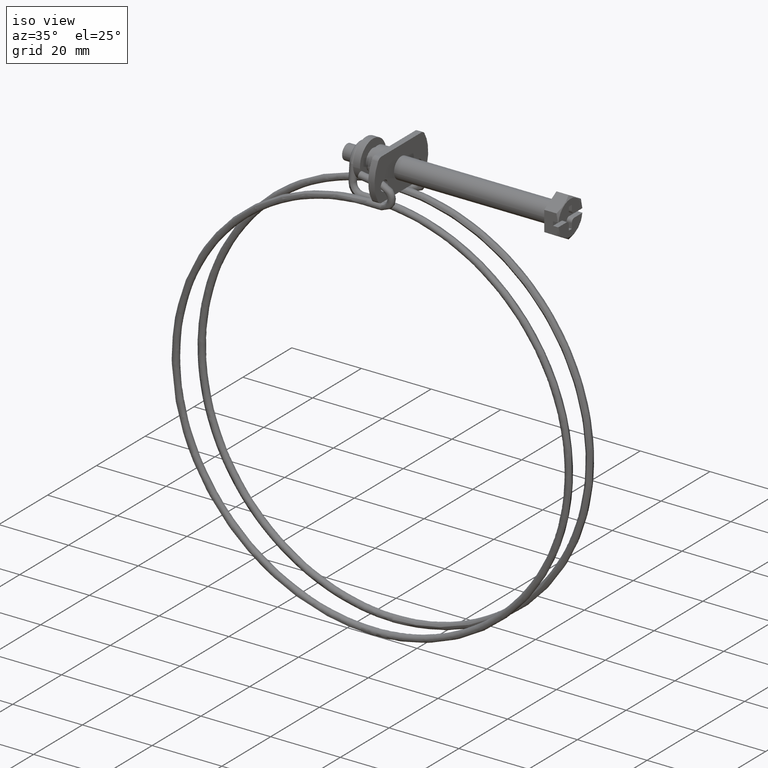
[diagram: clean part render]
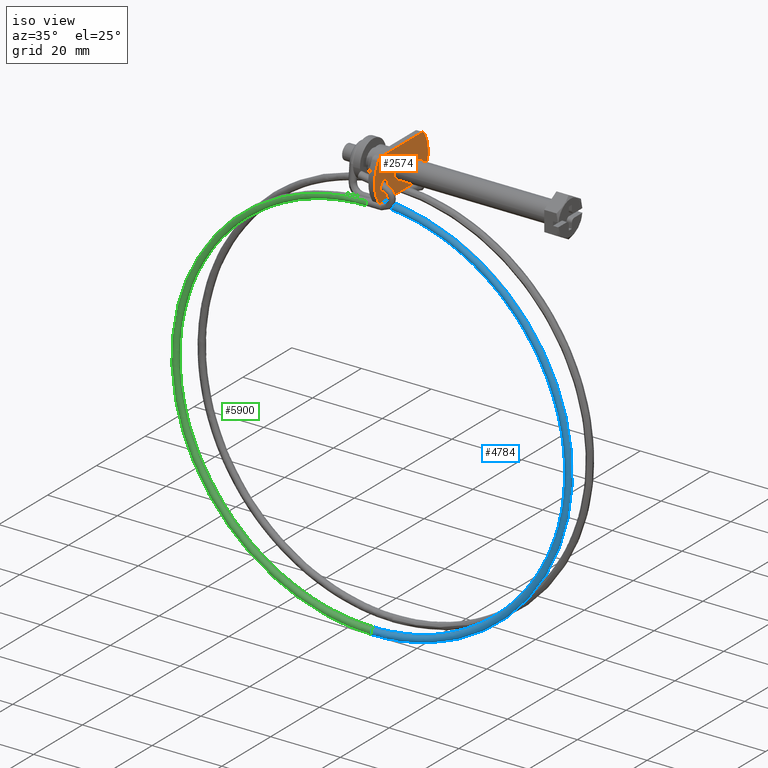
[diagram: same view with three faces highlighted in distinct colors, each labeled with its STEP entity id]
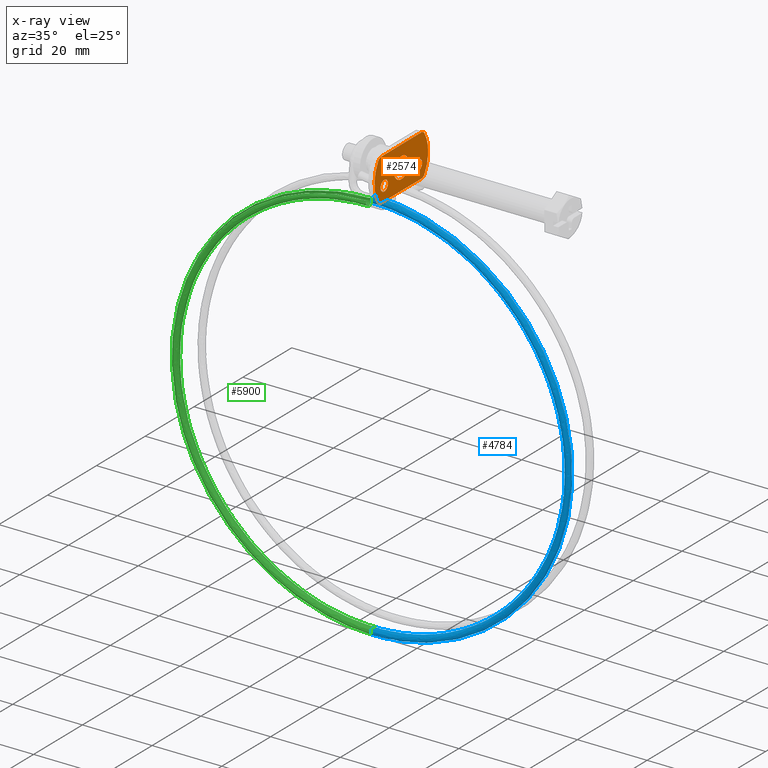
[diagram: x-ray of the same camera — body ghosted, the three highlighted faces saturated]
A machine part, iso view with three faces highlighted in distinct colors.
The next image is the same camera in x-ray (body ghosted, the three faces saturated) — at least one of them is partly hidden behind the body in this view.
Their STEP definitions:

[orange] entity #2574 — the highlighted face is a freeform B-spline surface patch.
#1904=CARTESIAN_POINT('',(-44.500000000000000,-2.976798641472038,-0.372384006275397));
#1905=VERTEX_POINT('',#1904);
#1911=CARTESIAN_POINT('',(-44.500000000000000,0.0,-2.999999999999915));
#1912=VERTEX_POINT('',#1911);
#1913=CARTESIAN_POINT('',(-44.500000000000007,-2.976798641472039,-0.372384006275397));
#1914=CARTESIAN_POINT('',(-44.500000000000000,-2.648095800386207,-2.999999999999915));
#1915=CARTESIAN_POINT('',(-44.500000000000000,0.0,-2.999999999999915));
#1923=(BOUNDED_CURVE()B_SPLINE_CURVE(2,(#1913,#1914,#1915),.UNSPECIFIED.,.F.,.U.)B_SPLINE_CURVE_WITH_KNOTS((3,3),(0.271473928974771,0.500000000000000),.UNSPECIFIED.)CURVE()GEOMETRIC_REPRESENTATION_ITEM()RATIONAL_B_SPLINE_CURVE((0.954005430266821,0.732265053898516,1.0))REPRESENTATION_ITEM(''));
#1924=EDGE_CURVE('',#1905,#1912,#1923,.T.);
#1926=CARTESIAN_POINT('',(-44.500000000000000,2.999885769186404,0.026179607185463));
#1927=VERTEX_POINT('',#1926);
#1928=CARTESIAN_POINT('',(-44.500000000000000,0.0,-2.999999999999915));
#1929=CARTESIAN_POINT('',(-44.500000000000000,2.999999999999915,-2.999999999999915));
#1930=CARTESIAN_POINT('',(-44.500000000000000,2.999999999999915,0.0));
#1931=CARTESIAN_POINT('',(-44.500000000000007,2.999999999999915,0.013090053152478));
#1932=CARTESIAN_POINT('',(-44.500000000000000,2.999885769186404,0.026179607185463));
#1940=(BOUNDED_CURVE()B_SPLINE_CURVE(2,(#1928,#1929,#1930,#1931,#1932),.UNSPECIFIED.,.F.,.U.)B_SPLINE_CURVE_WITH_KNOTS((3,2,3),(0.500000000000000,0.750000000000000,0.751539894416055),.UNSPECIFIED.)CURVE()GEOMETRIC_REPRESENTATION_ITEM()RATIONAL_B_SPLINE_CURVE((1.0,0.707106781186547,1.0,0.998195901471395,0.996414027912792))REPRESENTATION_ITEM(''));
#1941=EDGE_CURVE('',#1912,#1927,#1940,.T.);
#2021=CARTESIAN_POINT('',(-44.500000000000000,0.0,2.999999999999915));
#2022=VERTEX_POINT('',#2021);
#2023=CARTESIAN_POINT('',(-44.499999999999993,2.999885769186403,0.026179607185463));
#2024=CARTESIAN_POINT('',(-44.499999999999993,2.973933630416058,2.999999999999914));
#2025=CARTESIAN_POINT('',(-44.500000000000000,0.0,2.999999999999915));
#2033=(BOUNDED_CURVE()B_SPLINE_CURVE(2,(#2023,#2024,#2025),.UNSPECIFIED.,.F.,.U.)B_SPLINE_CURVE_WITH_KNOTS((3,3),(0.751539894416056,1.0),.UNSPECIFIED.)CURVE()GEOMETRIC_REPRESENTATION_ITEM()RATIONAL_B_SPLINE_CURVE((0.996414027912790,0.708910879715154,1.0))REPRESENTATION_ITEM(''));
#2034=EDGE_CURVE('',#1927,#2022,#2033,.T.);
#2036=CARTESIAN_POINT('',(-44.500000000000000,0.0,2.999999999999915));
#2037=CARTESIAN_POINT('',(-44.500000000000000,-2.999999999999915,2.999999999999915));
#2038=CARTESIAN_POINT('',(-44.500000000000000,-2.999999999999915,0.0));
#2039=CARTESIAN_POINT('',(-44.500000000000000,-2.999999999999915,-0.186914782636819));
#2040=CARTESIAN_POINT('',(-44.500000000000000,-2.976798641472039,-0.372384006275397));
#2048=(BOUNDED_CURVE()B_SPLINE_CURVE(2,(#2036,#2037,#2038,#2039,#2040),.UNSPECIFIED.,.F.,.U.)B_SPLINE_CURVE_WITH_KNOTS((3,2,3),(0.0,0.250000000000000,0.271473928974771),.UNSPECIFIED.)CURVE()GEOMETRIC_REPRESENTATION_ITEM()RATIONAL_B_SPLINE_CURVE((1.0,0.707106781186547,1.0,0.974841727288031,0.954005430266820))REPRESENTATION_ITEM(''));
#2049=EDGE_CURVE('',#2022,#1905,#2048,.T.);
#2077=CARTESIAN_POINT('',(-44.500000000000000,-8.489514289422328,-1.822948646977202));
#2078=VERTEX_POINT('',#2077);
#2079=CARTESIAN_POINT('',(-44.500000000000000,-7.000000000000171,-3.500000000000000));
#2080=VERTEX_POINT('',#2079);
#2081=CARTESIAN_POINT('',(-44.500000000000000,-8.489514289422328,-1.822948646977202));
#2082=CARTESIAN_POINT('',(-44.500000000000000,-8.500000000000171,-1.911163819473505));
#2083=CARTESIAN_POINT('',(-44.500000000000000,-8.500000000000171,-2.0));
#2084=CARTESIAN_POINT('',(-44.500000000000007,-8.500000000000171,-3.499999999999999));
#2085=CARTESIAN_POINT('',(-44.500000000000000,-7.000000000000171,-3.500000000000000));
#2093=(BOUNDED_CURVE()B_SPLINE_CURVE(2,(#2081,#2082,#2083,#2084,#2085),.UNSPECIFIED.,.F.,.U.)B_SPLINE_CURVE_WITH_KNOTS((3,2,3),(0.229562473280174,0.250000000000000,0.500000000000000),.UNSPECIFIED.)CURVE()GEOMETRIC_REPRESENTATION_ITEM()RATIONAL_B_SPLINE_CURVE((0.956026753726355,0.976055948057777,1.0,0.707106781186548,1.0))REPRESENTATION_ITEM(''));
#2094=EDGE_CURVE('',#2078,#2080,#2093,.T.);
#2096=CARTESIAN_POINT('',(-44.500000000000000,-5.502797802392843,-2.091572809718776));
#2097=VERTEX_POINT('',#2096);
#2098=CARTESIAN_POINT('',(-44.500000000000000,-7.000000000000171,-3.500000000000000));
#2099=CARTESIAN_POINT('',(-44.500000000000007,-5.588940900428148,-3.500000000000000));
#2100=CARTESIAN_POINT('',(-44.500000000000000,-5.502797802392843,-2.091572809718776));
#2108=(BOUNDED_CURVE()B_SPLINE_CURVE(2,(#2098,#2099,#2100),.UNSPECIFIED.,.F.,.U.)B_SPLINE_CURVE_WITH_KNOTS((3,3),(0.500000000000000,0.739332962145971),.UNSPECIFIED.)CURVE()GEOMETRIC_REPRESENTATION_ITEM()RATIONAL_B_SPLINE_CURVE((1.0,0.719603993395634,0.976072041467460))REPRESENTATION_ITEM(''));
#2109=EDGE_CURVE('',#2080,#2097,#2108,.T.);
#2176=CARTESIAN_POINT('',(-44.500000000000000,-7.000000000000171,-0.500000000000000));
#2177=VERTEX_POINT('',#2176);
#2178=CARTESIAN_POINT('',(-44.500000000000000,-7.000000000000171,-0.500000000000000));
#2179=CARTESIAN_POINT('',(-44.500000000000014,-8.332261787057933,-0.500000000000000));
#2180=CARTESIAN_POINT('',(-44.500000000000000,-8.489514289422328,-1.822948646977202));
#2188=(BOUNDED_CURVE()B_SPLINE_CURVE(2,(#2178,#2179,#2180),.UNSPECIFIED.,.F.,.U.)B_SPLINE_CURVE_WITH_KNOTS((3,3),(0.0,0.229562473280174),.UNSPECIFIED.)CURVE()GEOMETRIC_REPRESENTATION_ITEM()RATIONAL_B_SPLINE_CURVE((1.0,0.731050833128770,0.956026753726355))REPRESENTATION_ITEM(''));
#2189=EDGE_CURVE('',#2177,#2078,#2188,.T.);
#2223=CARTESIAN_POINT('',(-44.500000000000000,-5.502797802392843,-2.091572809718776));
#2224=CARTESIAN_POINT('',(-44.500000000000000,-5.500000000000170,-2.045829145365541));
#2225=CARTESIAN_POINT('',(-44.500000000000000,-5.500000000000170,-2.0));
#2226=CARTESIAN_POINT('',(-44.500000000000007,-5.500000000000171,-0.500000000000000));
#2227=CARTESIAN_POINT('',(-44.500000000000000,-7.000000000000171,-0.500000000000000));
#2235=(BOUNDED_CURVE()B_SPLINE_CURVE(2,(#2223,#2224,#2225,#2226,#2227),.UNSPECIFIED.,.F.,.U.)B_SPLINE_CURVE_WITH_KNOTS((3,2,3),(0.739332962145970,0.750000000000000,1.0),.UNSPECIFIED.)CURVE()GEOMETRIC_REPRESENTATION_ITEM()RATIONAL_B_SPLINE_CURVE((0.976072041467460,0.987502787790913,1.0,0.707106781186548,1.0))REPRESENTATION_ITEM(''));
#2236=EDGE_CURVE('',#2097,#2177,#2235,.T.);
#2263=CARTESIAN_POINT('',(-44.500000000000000,5.510485710577843,-1.822948646977202));
#2264=VERTEX_POINT('',#2263);
#2265=CARTESIAN_POINT('',(-44.500000000000000,7.0,-3.500000000000000));
#2266=VERTEX_POINT('',#2265);
#2267=CARTESIAN_POINT('',(-44.500000000000000,5.510485710577844,-1.822948646977203));
#2268=CARTESIAN_POINT('',(-44.499999999999993,5.500000000000000,-1.911163819473505));
#2269=CARTESIAN_POINT('',(-44.500000000000000,5.500000000000000,-2.0));
#2270=CARTESIAN_POINT('',(-44.500000000000007,5.500000000000001,-3.499999999999999));
#2271=CARTESIAN_POINT('',(-44.500000000000000,7.0,-3.500000000000000));
#2279=(BOUNDED_CURVE()B_SPLINE_CURVE(2,(#2267,#2268,#2269,#2270,#2271),.UNSPECIFIED.,.F.,.U.)B_SPLINE_CURVE_WITH_KNOTS((3,2,3),(0.229562473280174,0.250000000000000,0.500000000000000),.UNSPECIFIED.)CURVE()GEOMETRIC_REPRESENTATION_ITEM()RATIONAL_B_SPLINE_CURVE((0.956026753726355,0.976055948057777,1.0,0.707106781186548,1.0))REPRESENTATION_ITEM(''));
#2280=EDGE_CURVE('',#2264,#2266,#2279,.T.);
#2282=CARTESIAN_POINT('',(-44.500000000000000,8.497202197607326,-2.091572809718776));
#2283=VERTEX_POINT('',#2282);
#2284=CARTESIAN_POINT('',(-44.500000000000000,7.0,-3.500000000000000));
#2285=CARTESIAN_POINT('',(-44.500000000000007,8.411059099572025,-3.500000000000000));
#2286=CARTESIAN_POINT('',(-44.500000000000000,8.497202197607326,-2.091572809718776));
#2294=(BOUNDED_CURVE()B_SPLINE_CURVE(2,(#2284,#2285,#2286),.UNSPECIFIED.,.F.,.U.)B_SPLINE_CURVE_WITH_KNOTS((3,3),(0.500000000000000,0.739332962145971),.UNSPECIFIED.)CURVE()GEOMETRIC_REPRESENTATION_ITEM()RATIONAL_B_SPLINE_CURVE((1.0,0.719603993395634,0.976072041467460))REPRESENTATION_ITEM(''));
#2295=EDGE_CURVE('',#2266,#2283,#2294,.T.);
#2362=CARTESIAN_POINT('',(-44.500000000000000,7.0,-0.500000000000000));
#2363=VERTEX_POINT('',#2362);
#2364=CARTESIAN_POINT('',(-44.500000000000000,7.0,-0.500000000000000));
#2365=CARTESIAN_POINT('',(-44.499999999999993,5.667738212942238,-0.500000000000000));
#2366=CARTESIAN_POINT('',(-44.500000000000000,5.510485710577844,-1.822948646977202));
#2374=(BOUNDED_CURVE()B_SPLINE_CURVE(2,(#2364,#2365,#2366),.UNSPECIFIED.,.F.,.U.)B_SPLINE_CURVE_WITH_KNOTS((3,3),(0.0,0.229562473280174),.UNSPECIFIED.)CURVE()GEOMETRIC_REPRESENTATION_ITEM()RATIONAL_B_SPLINE_CURVE((1.0,0.731050833128770,0.956026753726355))REPRESENTATION_ITEM(''));
#2375=EDGE_CURVE('',#2363,#2264,#2374,.T.);
#2409=CARTESIAN_POINT('',(-44.500000000000000,8.497202197607326,-2.091572809718776));
#2410=CARTESIAN_POINT('',(-44.500000000000000,8.499999999999998,-2.045829145365541));
#2411=CARTESIAN_POINT('',(-44.500000000000000,8.500000000000000,-2.0));
#2412=CARTESIAN_POINT('',(-44.500000000000007,8.500000000000002,-0.500000000000000));
#2413=CARTESIAN_POINT('',(-44.500000000000000,7.0,-0.500000000000000));
#2421=(BOUNDED_CURVE()B_SPLINE_CURVE(2,(#2409,#2410,#2411,#2412,#2413),.UNSPECIFIED.,.F.,.U.)B_SPLINE_CURVE_WITH_KNOTS((3,2,3),(0.739332962145970,0.750000000000000,1.0),.UNSPECIFIED.)CURVE()GEOMETRIC_REPRESENTATION_ITEM()RATIONAL_B_SPLINE_CURVE((0.976072041467460,0.987502787790913,1.0,0.707106781186548,1.0))REPRESENTATION_ITEM(''));
#2422=EDGE_CURVE('',#2283,#2363,#2421,.T.);
#2445=CARTESIAN_POINT('',(-44.500000000000000,-12.098901057259649,6.599399976741672));
#2446=CARTESIAN_POINT('',(-44.500000000000000,12.098901647345629,6.599399976741672));
#2447=CARTESIAN_POINT('',(-44.500000000000000,-12.098901057259649,-6.599400298606754));
#2448=CARTESIAN_POINT('',(-44.500000000000000,12.098901647345629,-6.599400298606754));
#2449=B_SPLINE_SURFACE_WITH_KNOTS('',1,1,((#2445,#2447),(#2446,#2448)),.UNSPECIFIED.,.F.,.F.,.U.,(2,2),(2,2),(0.0,24.197802704605280),(0.0,13.198800275348431),.UNSPECIFIED.);
#2450=CARTESIAN_POINT('',(-44.500000000000000,-8.211102835975872,6.0));
#2451=VERTEX_POINT('',#2450);
#2452=CARTESIAN_POINT('',(-44.500000000000000,8.211102835975812,6.0));
#2453=VERTEX_POINT('',#2452);
#2454=CARTESIAN_POINT('',(-44.500000000000000,-8.211102835975872,6.0));
#2455=CARTESIAN_POINT('',(-44.500000000000000,8.211102835975812,6.0));
#2456=QUASI_UNIFORM_CURVE('',1,(#2454,#2455),.UNSPECIFIED.,.F.,.U.);
#2457=EDGE_CURVE('',#2451,#2453,#2456,.T.);
#2458=ORIENTED_EDGE('',*,*,#2457,.F.);
#2459=CARTESIAN_POINT('',(-44.500000000000000,-9.483650111758561,5.294118020761420));
#2460=VERTEX_POINT('',#2459);
#2461=CARTESIAN_POINT('',(-44.500000000000000,-8.211102835975872,6.0));
#2462=CARTESIAN_POINT('',(-44.500000000000014,-9.043152842296166,6.0));
#2463=CARTESIAN_POINT('',(-44.500000000000000,-9.483650111758568,5.294118020761424));
#2471=(BOUNDED_CURVE()B_SPLINE_CURVE(2,(#2461,#2462,#2463),.UNSPECIFIED.,.F.,.U.)CURVE()GEOMETRIC_REPRESENTATION_ITEM()QUASI_UNIFORM_CURVE()RATIONAL_B_SPLINE_CURVE((1.0,0.874474703419415,1.0))REPRESENTATION_ITEM(''));
#2472=EDGE_CURVE('',#2451,#2460,#2471,.T.);
#2473=ORIENTED_EDGE('',*,*,#2472,.T.);
#2474=CARTESIAN_POINT('',(-44.500000000000000,-9.483650111758561,-5.294118020761420));
#2475=VERTEX_POINT('',#2474);
#2476=CARTESIAN_POINT('',(-44.500000000000000,-9.483650111758561,5.294118020761425));
#2477=CARTESIAN_POINT('',(-44.500000000000007,-12.787381614966266,8.673617E-016));
#2478=CARTESIAN_POINT('',(-44.500000000000000,-9.483650111758561,-5.294118020761424));
#2486=(BOUNDED_CURVE()B_SPLINE_CURVE(2,(#2476,#2477,#2478),.UNSPECIFIED.,.F.,.U.)CURVE()GEOMETRIC_REPRESENTATION_ITEM()QUASI_UNIFORM_CURVE()RATIONAL_B_SPLINE_CURVE((1.0,0.848364850521798,1.0))REPRESENTATION_ITEM(''));
#2487=EDGE_CURVE('',#2460,#2475,#2486,.T.);
#2488=ORIENTED_EDGE('',*,*,#2487,.T.);
#2489=CARTESIAN_POINT('',(-44.500000000000000,-8.211102835975872,-6.0));
#2490=VERTEX_POINT('',#2489);
#2491=CARTESIAN_POINT('',(-44.500000000000000,-9.483650111758568,-5.294118020761424));
#2492=CARTESIAN_POINT('',(-44.500000000000000,-9.043152842296165,-6.000000000000001));
#2493=CARTESIAN_POINT('',(-44.500000000000000,-8.211102835975872,-6.0));
#2501=(BOUNDED_CURVE()B_SPLINE_CURVE(2,(#2491,#2492,#2493),.UNSPECIFIED.,.F.,.U.)CURVE()GEOMETRIC_REPRESENTATION_ITEM()QUASI_UNIFORM_CURVE()RATIONAL_B_SPLINE_CURVE((1.0,0.874474703419416,1.0))REPRESENTATION_ITEM(''));
#2502=EDGE_CURVE('',#2475,#2490,#2501,.T.);
#2503=ORIENTED_EDGE('',*,*,#2502,.T.);
#2504=CARTESIAN_POINT('',(-44.500000000000000,8.211102835975812,-6.0));
#2505=VERTEX_POINT('',#2504);
#2506=CARTESIAN_POINT('',(-44.500000000000000,8.211102835975812,-6.0));
#2507=CARTESIAN_POINT('',(-44.500000000000000,-8.211102835975872,-6.0));
#2508=QUASI_UNIFORM_CURVE('',1,(#2506,#2507),.UNSPECIFIED.,.F.,.U.);
#2509=EDGE_CURVE('',#2505,#2490,#2508,.T.);
#2510=ORIENTED_EDGE('',*,*,#2509,.F.);
#2511=CARTESIAN_POINT('',(-44.500000000000000,9.483650111758500,-5.294118020761420));
#2512=VERTEX_POINT('',#2511);
#2513=CARTESIAN_POINT('',(-44.500000000000000,8.211102835975812,-6.0));
#2514=CARTESIAN_POINT('',(-44.500000000000014,9.043152842296104,-6.0));
#2515=CARTESIAN_POINT('',(-44.500000000000000,9.483650111758506,-5.294118020761425));
#2523=(BOUNDED_CURVE()B_SPLINE_CURVE(2,(#2513,#2514,#2515),.UNSPECIFIED.,.F.,.U.)CURVE()GEOMETRIC_REPRESENTATION_ITEM()QUASI_UNIFORM_CURVE()RATIONAL_B_SPLINE_CURVE((1.0,0.874474703419415,1.0))REPRESENTATION_ITEM(''));
#2524=EDGE_CURVE('',#2505,#2512,#2523,.T.);
#2525=ORIENTED_EDGE('',*,*,#2524,.T.);
#2526=CARTESIAN_POINT('',(-44.500000000000000,9.483650111758500,5.294118020761420));
#2527=VERTEX_POINT('',#2526);
#2528=CARTESIAN_POINT('',(-44.500000000000000,9.483650111758506,-5.294118020761426));
#2529=CARTESIAN_POINT('',(-44.500000000000000,12.787381614966209,-3.469447E-015));
#2530=CARTESIAN_POINT('',(-44.500000000000000,9.483650111758506,5.294118020761422));
#2538=(BOUNDED_CURVE()B_SPLINE_CURVE(2,(#2528,#2529,#2530),.UNSPECIFIED.,.F.,.U.)CURVE()GEOMETRIC_REPRESENTATION_ITEM()QUASI_UNIFORM_CURVE()RATIONAL_B_SPLINE_CURVE((1.0,0.848364850521798,1.0))REPRESENTATION_ITEM(''));
#2539=EDGE_CURVE('',#2512,#2527,#2538,.T.);
#2540=ORIENTED_EDGE('',*,*,#2539,.T.);
#2541=CARTESIAN_POINT('',(-44.500000000000000,9.483650111758507,5.294118020761424));
#2542=CARTESIAN_POINT('',(-44.500000000000000,9.043152842296104,6.000000000000001));
#2543=CARTESIAN_POINT('',(-44.500000000000000,8.211102835975812,6.0));
#2551=(BOUNDED_CURVE()B_SPLINE_CURVE(2,(#2541,#2542,#2543),.UNSPECIFIED.,.F.,.U.)CURVE()GEOMETRIC_REPRESENTATION_ITEM()QUASI_UNIFORM_CURVE()RATIONAL_B_SPLINE_CURVE((1.0,0.874474703419416,1.0))REPRESENTATION_ITEM(''));
#2552=EDGE_CURVE('',#2527,#2453,#2551,.T.);
#2553=ORIENTED_EDGE('',*,*,#2552,.T.);
#2554=EDGE_LOOP('',(#2458,#2473,#2488,#2503,#2510,#2525,#2540,#2553));
#2555=FACE_OUTER_BOUND('',#2554,.T.);
#2556=ORIENTED_EDGE('',*,*,#2295,.F.);
#2557=ORIENTED_EDGE('',*,*,#2280,.F.);
#2558=ORIENTED_EDGE('',*,*,#2375,.F.);
#2559=ORIENTED_EDGE('',*,*,#2422,.F.);
#2560=EDGE_LOOP('',(#2556,#2557,#2558,#2559));
#2561=FACE_BOUND('',#2560,.T.);
#2562=ORIENTED_EDGE('',*,*,#2109,.F.);
#2563=ORIENTED_EDGE('',*,*,#2094,.F.);
#2564=ORIENTED_EDGE('',*,*,#2189,.F.);
#2565=ORIENTED_EDGE('',*,*,#2236,.F.);
#2566=EDGE_LOOP('',(#2562,#2563,#2564,#2565));
#2567=FACE_BOUND('',#2566,.T.);
#2568=ORIENTED_EDGE('',*,*,#1941,.F.);
#2569=ORIENTED_EDGE('',*,*,#1924,.F.);
#2570=ORIENTED_EDGE('',*,*,#2049,.F.);
#2571=ORIENTED_EDGE('',*,*,#2034,.F.);
#2572=EDGE_LOOP('',(#2568,#2569,#2570,#2571));
#2573=FACE_BOUND('',#2572,.T.);
#2574=ADVANCED_FACE('',(#2555,#2561,#2567,#2573),#2449,.F.);

[blue] entity #4784 — the highlighted face is a freeform B-spline surface patch.
#4046=CARTESIAN_POINT('',(-49.255038650200348,-5.060398715509752,-8.499779983532186));
#4047=VERTEX_POINT('',#4046);
#4053=CARTESIAN_POINT('',(-49.254950395027471,-4.300001982146626,-6.850340497804752));
#4054=VERTEX_POINT('',#4053);
#4055=CARTESIAN_POINT('',(-49.254950395027471,-4.300001982146626,-6.850340497804752));
#4056=CARTESIAN_POINT('',(-49.254950395040659,-4.430901965094715,-6.850340742096166));
#4057=CARTESIAN_POINT('',(-49.254951787681648,-4.561750569623735,-6.876368415959608));
#4058=CARTESIAN_POINT('',(-49.254957148311433,-4.803622681404398,-6.976555564983467));
#4059=CARTESIAN_POINT('',(-49.254961114191040,-4.914551022308484,-7.050675620778942));
#4060=CARTESIAN_POINT('',(-49.254971019316962,-5.099672443531182,-7.235796845003726));
#4061=CARTESIAN_POINT('',(-49.254976954666013,-5.173792686475602,-7.346725176136355));
#4062=CARTESIAN_POINT('',(-49.254989896322442,-5.273980358889042,-7.588597447301913));
#4063=CARTESIAN_POINT('',(-49.254996897537808,-5.300008368787180,-7.719446220924572));
#4064=CARTESIAN_POINT('',(-49.255010905474833,-5.300009627469922,-7.981246678323548));
#4065=CARTESIAN_POINT('',(-49.255017906684969,-5.273982875759288,-8.112095354799282));
#4066=CARTESIAN_POINT('',(-49.255029554110457,-5.183816428355129,-8.329779182064886));
#4067=CARTESIAN_POINT('',(-49.255034388014323,-5.128365972188192,-8.420122125025397));
#4068=CARTESIAN_POINT('',(-49.255038650200348,-5.060398715509752,-8.499779983532186));
#4069=B_SPLINE_CURVE_WITH_KNOTS('',3,(#4055,#4056,#4057,#4058,#4059,#4060,#4061,#4062,#4063,#4064,#4065,#4066,#4067,#4068),.UNSPECIFIED.,.F.,.U.,(4,2,2,2,2,2,4),(0.0,0.062500000000000,0.125000000000000,0.187500000000000,0.250000000000000,0.312500000000001,0.362499545093492),.UNSPECIFIED.);
#4070=EDGE_CURVE('',#4054,#4047,#4069,.T.);
#4072=CARTESIAN_POINT('',(-49.254950396213523,-4.274872013483973,-6.850655176147978));
#4073=VERTEX_POINT('',#4072);
#4074=CARTESIAN_POINT('',(-49.254950396213523,-4.274872013483973,-6.850655176147978));
#4075=CARTESIAN_POINT('',(-49.254950390131818,-4.283246735310286,-6.850444015374301));
#4076=CARTESIAN_POINT('',(-49.254950389727838,-4.291624253248391,-6.850338951347286));
#4077=CARTESIAN_POINT('',(-49.254950395027471,-4.300001982146626,-6.850340497804752));
#4078=B_SPLINE_CURVE_WITH_KNOTS('',3,(#4074,#4075,#4076,#4077),.UNSPECIFIED.,.F.,.U.,(4,4),(0.995999947857684,1.0),.UNSPECIFIED.);
#4079=EDGE_CURVE('',#4073,#4054,#4078,.T.);
#4196=CARTESIAN_POINT('',(-49.255005245896342,-3.300319568369443,-7.875470703817528));
#4197=VERTEX_POINT('',#4196);
#4209=CARTESIAN_POINT('',(-49.255057407346328,-4.300002017860920,-8.850340494941847));
#4210=VERTEX_POINT('',#4209);
#4211=CARTESIAN_POINT('',(-49.255057407346328,-4.300002017860920,-8.850340494941847));
#4212=CARTESIAN_POINT('',(-49.255057407352488,-4.169102206010277,-8.850340500275193));
#4213=CARTESIAN_POINT('',(-49.255056014737747,-4.038253874310510,-8.824313182892917));
#4214=CARTESIAN_POINT('',(-49.255050654170219,-3.796382470529389,-8.724126906813041));
#4215=CARTESIAN_POINT('',(-49.255046688326630,-3.685454564517028,-8.650007367136926));
#4216=CARTESIAN_POINT('',(-49.255036783277077,-3.500334109312011,-8.464887256652775));
#4217=CARTESIAN_POINT('',(-49.255030847968342,-3.426214397113463,-8.353959522703219));
#4218=CARTESIAN_POINT('',(-49.255018320531477,-3.329233852053024,-8.119828502795818));
#4219=CARTESIAN_POINT('',(-49.255011799214103,-3.303430513943580,-7.997948628311911));
#4220=CARTESIAN_POINT('',(-49.255005245896342,-3.300319568369443,-7.875470703817528));
#4221=B_SPLINE_CURVE_WITH_KNOTS('',3,(#4211,#4212,#4213,#4214,#4215,#4216,#4217,#4218,#4219,#4220),.UNSPECIFIED.,.F.,.U.,(4,2,2,2,4),(0.500000000000001,0.562500000000001,0.625000000000001,0.687500000000001,0.745999901021726),.UNSPECIFIED.);
#4222=EDGE_CURVE('',#4210,#4197,#4221,.T.);
#4224=CARTESIAN_POINT('',(-49.255038650200348,-5.060398715509752,-8.499779983532186));
#4225=CARTESIAN_POINT('',(-49.255039715780271,-5.043405798540080,-8.519695072668446));
#4226=CARTESIAN_POINT('',(-49.255040745624576,-5.025630510358625,-8.538942283263031));
#4227=CARTESIAN_POINT('',(-49.255046688623743,-4.914556079073689,-8.650013593572201));
#4228=CARTESIAN_POINT('',(-49.255050654407157,-4.803626833198496,-8.724131855056879));
#4229=CARTESIAN_POINT('',(-49.255056014854041,-4.561752746006958,-8.824315593813875));
#4230=CARTESIAN_POINT('',(-49.255057407408408,-4.430903071815419,-8.850341653063046));
#4231=CARTESIAN_POINT('',(-49.255057407346328,-4.300002017860920,-8.850340494941847));
#4232=B_SPLINE_CURVE_WITH_KNOTS('',3,(#4224,#4225,#4226,#4227,#4228,#4229,#4230,#4231),.UNSPECIFIED.,.F.,.U.,(4,2,2,4),(0.362499545093492,0.375000000000001,0.437500000000001,0.500000000000001),.UNSPECIFIED.);
#4233=EDGE_CURVE('',#4047,#4210,#4232,.T.);
#4631=CARTESIAN_POINT('',(-49.449999999752777,-3.300326002993875,-119.824871102866790));
#4632=VERTEX_POINT('',#4631);
#4633=CARTESIAN_POINT('',(-49.449999999955843,-4.274873102286453,-120.849677996990910));
#4634=VERTEX_POINT('',#4633);
#4646=CARTESIAN_POINT('',(-49.449999999752784,-3.300326002993875,-119.824871102866810));
#4647=CARTESIAN_POINT('',(6.174269713956732,-3.300325998290083,-119.824871102418500));
#4648=CARTESIAN_POINT('',(6.523765008624322,-3.300322801161642,-64.201699247883738));
#4649=CARTESIAN_POINT('',(6.876449157732067,-3.300319574862058,-8.071012124186694));
#4650=CARTESIAN_POINT('',(-49.255005245896342,-3.300319568369443,-7.875470703817528));
#4658=(BOUNDED_CURVE()B_SPLINE_CURVE(2,(#4646,#4647,#4648,#4649,#4650),.UNSPECIFIED.,.F.,.U.)B_SPLINE_CURVE_WITH_KNOTS((3,2,3),(-3.792515020809203,-2.0,-0.196300389414221),.UNSPECIFIED.)CURVE()GEOMETRIC_REPRESENTATION_ITEM()RATIONAL_B_SPLINE_CURVE((0.934811369269982,0.685815180528936,1.0,0.683854790641534,0.937940572291493))REPRESENTATION_ITEM(''));
#4659=EDGE_CURVE('',#4632,#4197,#4658,.T.);
#4663=CARTESIAN_POINT('',(-49.449999999955843,-4.274873102286453,-120.849677996990890));
#4664=CARTESIAN_POINT('',(7.192665045231515,-4.274873102226135,-120.849678007006150));
#4665=CARTESIAN_POINT('',(7.548559056414305,-4.274872561243584,-64.208136918656493));
#4666=CARTESIAN_POINT('',(7.907722454280248,-4.274872015291350,-7.046263668684757));
#4667=CARTESIAN_POINT('',(-49.254950396213523,-4.274872013483973,-6.850655176147978));
#4675=(BOUNDED_CURVE()B_SPLINE_CURVE(2,(#4663,#4664,#4665,#4666,#4667),.UNSPECIFIED.,.F.,.U.)B_SPLINE_CURVE_WITH_KNOTS((3,2,3),(-3.792515020813680,-2.0,-0.196224319360392),.UNSPECIFIED.)CURVE()GEOMETRIC_REPRESENTATION_ITEM()RATIONAL_B_SPLINE_CURVE((0.934811369271226,0.685815180528151,1.0,0.683841457388617,0.937962005166108))REPRESENTATION_ITEM(''));
#4676=EDGE_CURVE('',#4634,#4073,#4675,.T.);
#4681=CARTESIAN_POINT('',(-57.521347176716482,-4.253708619558948,-120.274789008766730));
#4682=CARTESIAN_POINT('',(7.137629930023767,-4.253708702141235,-129.524005013665200));
#4683=CARTESIAN_POINT('',(7.548027046201080,-4.253708118963803,-64.208134879353580));
#4684=CARTESIAN_POINT('',(7.962016232611971,-4.253707530682014,1.679423465329880));
#4685=CARTESIAN_POINT('',(-57.299128752666050,-4.253707611693580,-7.393871794995923));
#4686=CARTESIAN_POINT('',(-57.521384679697476,-4.264244160591654,-120.275051182719450));
#4687=CARTESIAN_POINT('',(7.137892860704764,-4.264244243174326,-129.524310163488540));
#4688=CARTESIAN_POINT('',(7.548291883765143,-4.264243659994183,-64.208136543304903));
#4689=CARTESIAN_POINT('',(7.962282993749416,-4.264243071709661,1.679727943562037));
#4690=CARTESIAN_POINT('',(-57.299165223123850,-4.264243152721606,-7.393609475230284));
#4691=CARTESIAN_POINT('',(-57.524981053796004,-5.274557097859563,-120.300192533829290));
#4692=CARTESIAN_POINT('',(7.163106778793152,-5.274557180479030,-129.553572715203810));
#4693=CARTESIAN_POINT('',(7.573688663713695,-5.274556597039041,-64.208296109058807));
#4694=CARTESIAN_POINT('',(7.987864236087510,-5.274556008492395,1.708926092580805));
#4695=CARTESIAN_POINT('',(-57.302662582700144,-5.274556089540437,-7.368454141289098));
#4696=CARTESIAN_POINT('',(-57.383421085745312,-5.299687184467090,-119.310581875947790));
#4697=CARTESIAN_POINT('',(6.170640105067831,-5.299687265638181,-128.401743942615950));
#4698=CARTESIAN_POINT('',(6.574024207340422,-5.299686692426296,-64.202014949153067));
#4699=CARTESIAN_POINT('',(6.980938997255189,-5.299686114197277,0.559633040400024));
#4700=CARTESIAN_POINT('',(-57.165000010253934,-5.299686193824489,-8.358614478813356));
#4701=CARTESIAN_POINT('',(-57.241861117694633,-5.324817271074619,-118.320971218066350));
#4702=CARTESIAN_POINT('',(5.178173431342507,-5.324817350797332,-127.249915170028130));
#4703=CARTESIAN_POINT('',(5.574359750967155,-5.324816787813553,-64.195733789247328));
#4704=CARTESIAN_POINT('',(5.974013758422858,-5.324816219902161,-0.589660011780771));
#4705=CARTESIAN_POINT('',(-57.027337437807759,-5.324816298108546,-9.348774816337627));
#4706=CARTESIAN_POINT('',(-57.238302578361690,-4.325133081569202,-118.296094360332330));
#4707=CARTESIAN_POINT('',(5.153224770052861,-4.325133161255509,-127.220960467761930));
#4708=CARTESIAN_POINT('',(5.549230151570384,-4.325132598528843,-64.195575902165544));
#4709=CARTESIAN_POINT('',(5.948701637227558,-4.325132030876816,-0.618550988883189));
#4710=CARTESIAN_POINT('',(-57.023876871339226,-4.325132109047484,-9.373665509800137));
#4711=CARTESIAN_POINT('',(-57.234744039028790,-3.325448892063789,-118.271217502598350));
#4712=CARTESIAN_POINT('',(5.128276108763202,-3.325448971713687,-127.192005765495710));
#4713=CARTESIAN_POINT('',(5.524100552173615,-3.325448409244135,-64.195418015083774));
#4714=CARTESIAN_POINT('',(5.923389516032263,-3.325447841851472,-0.647441965985622));
#4715=CARTESIAN_POINT('',(-57.020416304870714,-3.325447919986422,-9.398556203262640));
#4716=CARTESIAN_POINT('',(-57.377798960787722,-3.300053417460770,-119.271279011402560));
#4717=CARTESIAN_POINT('',(6.131223794561638,-3.300053498574338,-128.355998504482870));
#4718=CARTESIAN_POINT('',(6.534322033295116,-3.300052925768668,-64.201765507607590));
#4719=CARTESIAN_POINT('',(6.940948457601734,-3.300052347949418,0.513988273946005));
#4720=CARTESIAN_POINT('',(-57.159532672312764,-3.300052427520202,-8.397939209886186));
#4721=CARTESIAN_POINT('',(-57.379280892614460,-3.299790341142899,-119.281638829578510));
#4722=CARTESIAN_POINT('',(6.141613511167480,-3.299790422271630,-128.368056515943070));
#4723=CARTESIAN_POINT('',(6.544787100463230,-3.299789849358886,-64.201831262431497));
#4724=CARTESIAN_POINT('',(6.951489534850674,-3.299789271431627,0.526019740014686));
#4725=CARTESIAN_POINT('',(-57.160973803942504,-3.299789351017285,-8.387573637344991));
#4733=(BOUNDED_SURFACE()B_SPLINE_SURFACE(2,2,((#4681,#4686,#4691,#4696,#4701,#4706,#4711,#4716,#4721),(#4682,#4687,#4692,#4697,#4702,#4707,#4712,#4717,#4722),(#4683,#4688,#4693,#4698,#4703,#4708,#4713,#4718,#4723),(#4684,#4689,#4694,#4699,#4704,#4709,#4714,#4719,#4724),(#4685,#4690,#4695,#4700,#4705,#4710,#4715,#4720,#4725)),.UNSPECIFIED.,.F.,.F.,.U.)B_SPLINE_SURFACE_WITH_KNOTS((3,2,3),(3,1,2,2,1,3),(0.0,103.643202683104310,207.878192978932190),(0.0,0.025022772149826,1.681877021642220,3.338731271134614,4.995585520627008,5.020439189478687),.UNSPECIFIED.)GEOMETRIC_REPRESENTATION_ITEM()RATIONAL_B_SPLINE_SURFACE(((0.999134712384502,0.994753853922229,0.700299460993768,0.990372995459956,0.700299460993768,0.990372995459956,0.700299460993768,0.994724248185092,0.999075500910229),(0.660118304429724,0.657223915090412,0.462680844789180,0.654329525751100,0.462680844789180,0.654329525751100,0.462680844789180,0.657204354876201,0.660079184001302),(1.008846885935614,1.004423442967807,0.707106781186548,1.0,0.707106781186548,1.0,0.707106781186548,1.004393549445596,1.008787098891193),(0.658127114950865,0.655241456285375,0.461285208243380,0.652355797619885,0.461285208243380,0.652355797619885,0.461285208243380,0.655221955072850,0.658088112525814),(1.003028603309558,0.998630671488909,0.703028712297106,0.994232739668260,0.703028712297106,0.994232739668260,0.703028712297106,0.998600950370423,1.002969161072586)))REPRESENTATION_ITEM('')SURFACE());
#4734=CARTESIAN_POINT('',(-49.450000000000003,-4.300003000000027,-118.850001000000010));
#4735=VERTEX_POINT('',#4734);
#4736=CARTESIAN_POINT('',(-49.450000000000003,-4.300003000000027,-118.850001000000010));
#4737=CARTESIAN_POINT('',(-49.449999999966820,-4.038202646737807,-118.850000974656790));
#4738=CARTESIAN_POINT('',(-49.449999999920507,-3.778014028670147,-118.957774035685800));
#4739=CARTESIAN_POINT('',(-49.449999999829302,-3.413695994489541,-119.322089346494000));
#4740=CARTESIAN_POINT('',(-49.449999999784922,-3.306974639752352,-119.571623489326700));
#4741=CARTESIAN_POINT('',(-49.449999999752777,-3.300326002993875,-119.824871102866790));
#4742=B_SPLINE_CURVE_WITH_KNOTS('',3,(#4736,#4737,#4738,#4739,#4740,#4741),.UNSPECIFIED.,.F.,.U.,(4,2,4),(0.500000000000000,0.625000000000000,0.745999310946577),.UNSPECIFIED.);
#4743=EDGE_CURVE('',#4735,#4632,#4742,.T.);
#4744=ORIENTED_EDGE('',*,*,#4743,.F.);
#4745=CARTESIAN_POINT('',(-49.450000000000003,-5.028951952933920,-120.534536709504100));
#4746=VERTEX_POINT('',#4745);
#4747=CARTESIAN_POINT('',(-49.450000000000003,-5.028951952933920,-120.534536709504100));
#4748=CARTESIAN_POINT('',(-49.450000000000003,-5.200679688403360,-120.351169156835890));
#4749=CARTESIAN_POINT('',(-49.450000000000003,-5.300003000000000,-120.101327939058090));
#4750=CARTESIAN_POINT('',(-49.450000000000003,-5.300003000000000,-119.588201612201000));
#4751=CARTESIAN_POINT('',(-49.450000000000003,-5.192229903609841,-119.328014341236600));
#4752=CARTESIAN_POINT('',(-49.450000000000003,-4.821989658763310,-118.957774096390200));
#4753=CARTESIAN_POINT('',(-49.450000000000003,-4.561802387799180,-118.850001000000010));
#4754=CARTESIAN_POINT('',(-49.450000000000003,-4.300003000000027,-118.850001000000010));
#4755=B_SPLINE_CURVE_WITH_KNOTS('',3,(#4747,#4748,#4749,#4750,#4751,#4752,#4753,#4754),.UNSPECIFIED.,.F.,.U.,(4,2,2,4),(0.130000225950265,0.250000000000000,0.375000000000000,0.500000000000000),.UNSPECIFIED.);
#4756=EDGE_CURVE('',#4746,#4735,#4755,.T.);
#4757=ORIENTED_EDGE('',*,*,#4756,.F.);
#4758=CARTESIAN_POINT('',(-49.450000000000003,-4.300003000000027,-120.850001000000010));
#4759=VERTEX_POINT('',#4758);
#4760=CARTESIAN_POINT('',(-49.450000000000003,-4.300003000000027,-120.850001000000010));
#4761=CARTESIAN_POINT('',(-49.450000000000003,-4.561802387799180,-120.850001000000010));
#4762=CARTESIAN_POINT('',(-49.450000000000003,-4.821989658763310,-120.742227903609800));
#4763=CARTESIAN_POINT('',(-49.450000000000003,-5.014514920707031,-120.549702641666000));
#4764=CARTESIAN_POINT('',(-49.450000000000003,-5.021796293800569,-120.542177383852400));
#4765=CARTESIAN_POINT('',(-49.450000000000003,-5.028951952933920,-120.534536709504100));
#4766=B_SPLINE_CURVE_WITH_KNOTS('',3,(#4760,#4761,#4762,#4763,#4764,#4765),.UNSPECIFIED.,.F.,.U.,(4,2,4),(0.0,0.125000000000000,0.130000225950264),.UNSPECIFIED.);
#4767=EDGE_CURVE('',#4759,#4746,#4766,.T.);
#4768=ORIENTED_EDGE('',*,*,#4767,.F.);
#4769=CARTESIAN_POINT('',(-49.449999999955843,-4.274873102286453,-120.849677996990910));
#4770=CARTESIAN_POINT('',(-49.449999999970558,-4.283246477988325,-120.849895397849710));
#4771=CARTESIAN_POINT('',(-49.449999999985280,-4.291623913305166,-120.850003397794000));
#4772=CARTESIAN_POINT('',(-49.450000000000003,-4.300003000000027,-120.850001000000010));
#4773=B_SPLINE_CURVE_WITH_KNOTS('',3,(#4769,#4770,#4771,#4772),.UNSPECIFIED.,.F.,.U.,(4,4),(0.995999310854167,1.0),.UNSPECIFIED.);
#4774=EDGE_CURVE('',#4634,#4759,#4773,.T.);
#4775=ORIENTED_EDGE('',*,*,#4774,.F.);
#4776=ORIENTED_EDGE('',*,*,#4676,.T.);
#4777=ORIENTED_EDGE('',*,*,#4079,.T.);
#4778=ORIENTED_EDGE('',*,*,#4070,.T.);
#4779=ORIENTED_EDGE('',*,*,#4233,.T.);
#4780=ORIENTED_EDGE('',*,*,#4222,.T.);
#4781=ORIENTED_EDGE('',*,*,#4659,.F.);
#4782=EDGE_LOOP('',(#4744,#4757,#4768,#4775,#4776,#4777,#4778,#4779,#4780,#4781));
#4783=FACE_OUTER_BOUND('',#4782,.T.);
#4784=ADVANCED_FACE('',(#4783),#4733,.T.);

[green] entity #5900 — the highlighted face is a freeform B-spline surface patch.
#2961=CARTESIAN_POINT('',(-49.450000000003463,-5.310972934075143,-7.892637589749072));
#2962=VERTEX_POINT('',#2961);
#2968=CARTESIAN_POINT('',(-49.449999999936729,-5.975864826772260,-6.907995083442195));
#2969=VERTEX_POINT('',#2968);
#2970=CARTESIAN_POINT('',(-49.450000000003463,-5.310972934075143,-7.892637589749072));
#2971=CARTESIAN_POINT('',(-49.450000000002277,-5.309781668940605,-7.866484857020035));
#2972=CARTESIAN_POINT('',(-49.450000000001062,-5.309641057305558,-7.840279863804204));
#2973=CARTESIAN_POINT('',(-49.449999999987341,-5.319953517656930,-7.552379801501165));
#2974=CARTESIAN_POINT('',(-49.449999999971737,-5.436969187850818,-7.296118759622118));
#2975=CARTESIAN_POINT('',(-49.449999999949952,-5.728288971391106,-7.024810940482961));
#2976=CARTESIAN_POINT('',(-49.449999999942889,-5.847544374123154,-6.953617449770534));
#2977=CARTESIAN_POINT('',(-49.449999999936729,-5.975864826772260,-6.907995083442195));
#2978=B_SPLINE_CURVE_WITH_KNOTS('',3,(#2970,#2971,#2972,#2973,#2974,#2975,#2976,#2977),.UNSPECIFIED.,.F.,.U.,(4,2,2,4),(0.737494793452033,0.750000000000000,0.875000000000000,0.940036109682110),.UNSPECIFIED.);
#2979=EDGE_CURVE('',#2962,#2969,#2978,.T.);
#3025=CARTESIAN_POINT('',(-49.450000000000003,-6.345883282858190,-6.850644940559401));
#3026=VERTEX_POINT('',#3025);
#3027=CARTESIAN_POINT('',(-49.449999999936729,-5.975864826772260,-6.907995083442195));
#3028=CARTESIAN_POINT('',(-49.449999999957583,-6.094240067085554,-6.866122067816588));
#3029=CARTESIAN_POINT('',(-49.449999999979163,-6.220322197384121,-6.845986983624364));
#3030=CARTESIAN_POINT('',(-49.450000000000003,-6.345883282858190,-6.850644940559401));
#3031=B_SPLINE_CURVE_WITH_KNOTS('',3,(#3027,#3028,#3029,#3030),.UNSPECIFIED.,.F.,.U.,(4,4),(0.940036109682110,1.0),.UNSPECIFIED.);
#3032=EDGE_CURVE('',#2969,#3026,#3031,.T.);
#3034=CARTESIAN_POINT('',(-49.450000000000003,-7.063043572556424,-7.192061714372795));
#3035=VERTEX_POINT('',#3034);
#3045=CARTESIAN_POINT('',(-49.450000000000003,-6.274120717141775,-8.849357059440399));
#3046=VERTEX_POINT('',#3045);
#3047=CARTESIAN_POINT('',(-49.450000000000003,-7.063043572556424,-7.192061714372795));
#3048=CARTESIAN_POINT('',(-49.450000000000003,-7.228081262547574,-7.381473000687521));
#3049=CARTESIAN_POINT('',(-49.450000000000003,-7.318375992430715,-7.634717183409753));
#3050=CARTESIAN_POINT('',(-49.450000000000003,-7.299964361554760,-8.147513087413001));
#3051=CARTESIAN_POINT('',(-49.450000000000003,-7.182924811566990,-8.403665776284210));
#3052=CARTESIAN_POINT('',(-49.450000000000003,-6.799638284480039,-8.760382913469490));
#3053=CARTESIAN_POINT('',(-49.450000000000003,-6.535751521696669,-8.858750757326130));
#3054=CARTESIAN_POINT('',(-49.450000000000003,-6.274120717141775,-8.849357059440399));
#3055=B_SPLINE_CURVE_WITH_KNOTS('',3,(#3047,#3048,#3049,#3050,#3051,#3052,#3053,#3054),.UNSPECIFIED.,.F.,.U.,(4,2,2,4),(0.130000225950236,0.250000000000000,0.375000000000000,0.500000000000000),.UNSPECIFIED.);
#3056=EDGE_CURVE('',#3035,#3046,#3055,.T.);
#3058=CARTESIAN_POINT('',(-49.450000000000003,-6.274120717141775,-8.849357059440399));
#3059=CARTESIAN_POINT('',(-49.450000000000493,-6.012481209767175,-8.839963757494139));
#3060=CARTESIAN_POINT('',(-49.450000000001161,-5.756316559481019,-8.722924751697384));
#3061=CARTESIAN_POINT('',(-49.450000000002433,-5.417420206796421,-8.358811557077670));
#3062=CARTESIAN_POINT('',(-49.450000000003023,-5.321680969692204,-8.127829259354430));
#3063=CARTESIAN_POINT('',(-49.450000000003463,-5.310972934075143,-7.892637589749072));
#3064=B_SPLINE_CURVE_WITH_KNOTS('',3,(#3058,#3059,#3060,#3061,#3062,#3063),.UNSPECIFIED.,.F.,.U.,(4,2,4),(0.500000000000000,0.625000000000000,0.737494793452033),.UNSPECIFIED.);
#3065=EDGE_CURVE('',#3046,#2962,#3064,.T.);
#4631=CARTESIAN_POINT('',(-49.449999999752777,-3.300326002993875,-119.824871102866790));
#4632=VERTEX_POINT('',#4631);
#4633=CARTESIAN_POINT('',(-49.449999999955843,-4.274873102286453,-120.849677996990910));
#4634=VERTEX_POINT('',#4633);
#4635=CARTESIAN_POINT('',(-49.449999999752777,-3.300326002993875,-119.824871102866790));
#4636=CARTESIAN_POINT('',(-49.449999999753629,-3.300106234459085,-119.833244446334800));
#4637=CARTESIAN_POINT('',(-49.449999999754489,-3.299995866471249,-119.841621849806600));
#4638=CARTESIAN_POINT('',(-49.449999999782598,-3.299996836088870,-120.111801283059900));
#4639=CARTESIAN_POINT('',(-49.449999999820342,-3.407771234048322,-120.371989925767000));
#4640=CARTESIAN_POINT('',(-49.449999999894288,-3.772089165171074,-120.736307994415400));
#4641=CARTESIAN_POINT('',(-49.449999999930093,-4.021624576254212,-120.843029359332900));
#4642=CARTESIAN_POINT('',(-49.449999999955843,-4.274873102286453,-120.849677996990910));
#4643=B_SPLINE_CURVE_WITH_KNOTS('',3,(#4635,#4636,#4637,#4638,#4639,#4640,#4641,#4642),.UNSPECIFIED.,.F.,.U.,(4,2,2,4),(0.745999310946576,0.750000000000000,0.875000000000000,0.995999310854167),.UNSPECIFIED.);
#4644=EDGE_CURVE('',#4632,#4634,#4643,.T.);
#4734=CARTESIAN_POINT('',(-49.450000000000003,-4.300003000000027,-118.850001000000010));
#4735=VERTEX_POINT('',#4734);
#4736=CARTESIAN_POINT('',(-49.450000000000003,-4.300003000000027,-118.850001000000010));
#4737=CARTESIAN_POINT('',(-49.449999999966820,-4.038202646737807,-118.850000974656790));
#4738=CARTESIAN_POINT('',(-49.449999999920507,-3.778014028670147,-118.957774035685800));
#4739=CARTESIAN_POINT('',(-49.449999999829302,-3.413695994489541,-119.322089346494000));
#4740=CARTESIAN_POINT('',(-49.449999999784922,-3.306974639752352,-119.571623489326700));
#4741=CARTESIAN_POINT('',(-49.449999999752777,-3.300326002993875,-119.824871102866790));
#4742=B_SPLINE_CURVE_WITH_KNOTS('',3,(#4736,#4737,#4738,#4739,#4740,#4741),.UNSPECIFIED.,.F.,.U.,(4,2,4),(0.500000000000000,0.625000000000000,0.745999310946577),.UNSPECIFIED.);
#4743=EDGE_CURVE('',#4735,#4632,#4742,.T.);
#4745=CARTESIAN_POINT('',(-49.450000000000003,-5.028951952933920,-120.534536709504100));
#4746=VERTEX_POINT('',#4745);
#4747=CARTESIAN_POINT('',(-49.450000000000003,-5.028951952933920,-120.534536709504100));
#4748=CARTESIAN_POINT('',(-49.450000000000003,-5.200679688403360,-120.351169156835890));
#4749=CARTESIAN_POINT('',(-49.450000000000003,-5.300003000000000,-120.101327939058090));
#4750=CARTESIAN_POINT('',(-49.450000000000003,-5.300003000000000,-119.588201612201000));
#4751=CARTESIAN_POINT('',(-49.450000000000003,-5.192229903609841,-119.328014341236600));
#4752=CARTESIAN_POINT('',(-49.450000000000003,-4.821989658763310,-118.957774096390200));
#4753=CARTESIAN_POINT('',(-49.450000000000003,-4.561802387799180,-118.850001000000010));
#4754=CARTESIAN_POINT('',(-49.450000000000003,-4.300003000000027,-118.850001000000010));
#4755=B_SPLINE_CURVE_WITH_KNOTS('',3,(#4747,#4748,#4749,#4750,#4751,#4752,#4753,#4754),.UNSPECIFIED.,.F.,.U.,(4,2,2,4),(0.130000225950265,0.250000000000000,0.375000000000000,0.500000000000000),.UNSPECIFIED.);
#4756=EDGE_CURVE('',#4746,#4735,#4755,.T.);
#4758=CARTESIAN_POINT('',(-49.450000000000003,-4.300003000000027,-120.850001000000010));
#4759=VERTEX_POINT('',#4758);
#4769=CARTESIAN_POINT('',(-49.449999999955843,-4.274873102286453,-120.849677996990910));
#4770=CARTESIAN_POINT('',(-49.449999999970558,-4.283246477988325,-120.849895397849710));
#4771=CARTESIAN_POINT('',(-49.449999999985280,-4.291623913305166,-120.850003397794000));
#4772=CARTESIAN_POINT('',(-49.450000000000003,-4.300003000000027,-120.850001000000010));
#4773=B_SPLINE_CURVE_WITH_KNOTS('',3,(#4769,#4770,#4771,#4772),.UNSPECIFIED.,.F.,.U.,(4,4),(0.995999310854167,1.0),.UNSPECIFIED.);
#4774=EDGE_CURVE('',#4634,#4759,#4773,.T.);
#5559=CARTESIAN_POINT('',(-49.450000000000003,-7.063042640297036,-7.192060644432651));
#5560=CARTESIAN_POINT('',(-49.450000000000003,-7.228080922511322,-7.381472047009336));
#5561=CARTESIAN_POINT('',(-49.450000000000003,-7.318376009410780,-7.634716710485415));
#5562=CARTESIAN_POINT('',(-49.450000000000003,-7.299964361554760,-8.147513087413001));
#5563=CARTESIAN_POINT('',(-49.450000000000003,-7.182924811566990,-8.403665776284210));
#5564=CARTESIAN_POINT('',(-49.450000000000003,-6.799638284480039,-8.760382913469490));
#5565=CARTESIAN_POINT('',(-49.450000000000003,-6.535751521696669,-8.858750757326130));
#5566=CARTESIAN_POINT('',(-49.450000000000003,-6.012489912586880,-8.839963361554670));
#5567=CARTESIAN_POINT('',(-49.450000000000003,-5.756337223715670,-8.722923811566899));
#5568=CARTESIAN_POINT('',(-49.450000000000003,-5.399620086530380,-8.339637284479949));
#5569=CARTESIAN_POINT('',(-49.450000000000003,-5.301252242673750,-8.075750521696580));
#5570=CARTESIAN_POINT('',(-49.450000000000003,-5.320039638445209,-7.552488912586790));
#5571=CARTESIAN_POINT('',(-49.450000000000003,-5.437079188432969,-7.296336223715570));
#5572=CARTESIAN_POINT('',(-49.450000000000003,-5.820365715519920,-6.939619086530310));
#5573=CARTESIAN_POINT('',(-49.450000000000003,-6.084252478303299,-6.841251242673670));
#5574=CARTESIAN_POINT('',(-49.450000000000003,-6.345883282858190,-6.850644940559401));
#5575=CARTESIAN_POINT('',(-56.870793428204152,-7.063042640277649,-7.192060644658216));
#5576=CARTESIAN_POINT('',(-56.846378917198479,-7.228080922490064,-7.381472047204969));
#5577=CARTESIAN_POINT('',(-56.813430158001353,-7.318376009401368,-7.634716710589211));
#5578=CARTESIAN_POINT('',(-56.746239116342203,-7.299964361551580,-8.147513087616531));
#5579=CARTESIAN_POINT('',(-56.712422335018502,-7.182924811563810,-8.403665776436849));
#5580=CARTESIAN_POINT('',(-56.664811534494113,-6.799638284476860,-8.760382913723900));
#5581=CARTESIAN_POINT('',(-56.651310694646298,-6.535751521718930,-8.858750757529659));
#5582=CARTESIAN_POINT('',(-56.652541142225203,-6.012489912596419,-8.839963361910840));
#5583=CARTESIAN_POINT('',(-56.667264852748502,-5.756337223737931,-8.722923811770428));
#5584=CARTESIAN_POINT('',(-56.716615768969000,-5.399620086533560,-8.339637284836119));
#5585=CARTESIAN_POINT('',(-56.750939079895097,-5.301252242673750,-8.075750522001869));
#5586=CARTESIAN_POINT('',(-56.819501367264102,-5.320039638448390,-7.552488912790320));
#5587=CARTESIAN_POINT('',(-56.853318148549498,-5.437079188426610,-7.296336224122630));
#5588=CARTESIAN_POINT('',(-56.900928949073901,-5.820365715504020,-6.939619086733829));
#5589=CARTESIAN_POINT('',(-56.914429788921801,-6.084252478268320,-6.841251242928080));
#5590=CARTESIAN_POINT('',(-56.913814565132299,-6.345883282839110,-6.850644940737485));
#5591=CARTESIAN_POINT('',(-64.283618473096013,-7.036571564104083,-8.667066618829233));
#5592=CARTESIAN_POINT('',(-64.234815831667859,-7.201696939079359,-8.851625089197905));
#5593=CARTESIAN_POINT('',(-64.168953914969052,-7.292109562564196,-9.098320447087964));
#5594=CARTESIAN_POINT('',(-64.034644433457402,-7.273937602212719,-9.597761095997891));
#5595=CARTESIAN_POINT('',(-63.967047410728107,-7.157018685257260,-9.847191940329671));
#5596=CARTESIAN_POINT('',(-63.871877254465097,-6.773901997980850,-10.194445362061639));
#5597=CARTESIAN_POINT('',(-63.844890162822992,-6.510063396123540,-10.290129610875200));
#5598=CARTESIAN_POINT('',(-63.847349728456102,-5.986797397698740,-10.271586794285399));
#5599=CARTESIAN_POINT('',(-63.876781240155289,-5.730592185613410,-10.157473912332801));
#5600=CARTESIAN_POINT('',(-63.975429747437900,-5.373699001182210,-9.783996987761960));
#5601=CARTESIAN_POINT('',(-64.044039282128992,-5.275208717365810,-9.526932753664561));
#5602=CARTESIAN_POINT('',(-64.181089773518295,-5.293751534057350,-9.017299438348621));
#5603=CARTESIAN_POINT('',(-64.248686796298500,-5.410670451000090,-8.767868593915081));
#5604=CARTESIAN_POINT('',(-64.343856952561495,-5.793787138276490,-8.420615172284840));
#5605=CARTESIAN_POINT('',(-64.370844044203594,-6.057625740133810,-8.324930923471300));
#5606=CARTESIAN_POINT('',(-64.369614261387042,-6.319258739349390,-8.334202331817069));
#5607=CARTESIAN_POINT('',(-77.990755287104591,-6.934677687354285,-14.344738197838319));
#5608=CARTESIAN_POINT('',(-77.896859204362002,-7.100138270587145,-14.510618387501481));
#5609=CARTESIAN_POINT('',(-77.770141146142819,-7.191003276530976,-14.732106352166250));
#5610=CARTESIAN_POINT('',(-77.511730252447109,-7.173753840993950,-15.180142607184600));
#5611=CARTESIAN_POINT('',(-77.381673856962905,-7.057299224350381,-15.403701979657800));
#5612=CARTESIAN_POINT('',(-77.198566865162704,-6.674836227569130,-15.714530838082400));
#5613=CARTESIAN_POINT('',(-77.146643811081205,-6.411182990592420,-15.799886292026450));
#5614=CARTESIAN_POINT('',(-77.151376005300989,-5.887900098264440,-15.782284827097399));
#5615=CARTESIAN_POINT('',(-77.208002113524103,-5.631492731428600,-15.679436295212749));
#5616=CARTESIAN_POINT('',(-77.397801438625891,-5.273921964928370,-15.343715206500750));
#5617=CARTESIAN_POINT('',(-77.529805902898005,-5.174960426225421,-15.112909963880300));
#5618=CARTESIAN_POINT('',(-77.793490488250995,-5.192561891052760,-14.655730111922500));
#5619=CARTESIAN_POINT('',(-77.923546883684295,-5.309016507709051,-14.432170739551021));
#5620=CARTESIAN_POINT('',(-78.106653875484483,-5.691479504490300,-14.121341881024680));
#5621=CARTESIAN_POINT('',(-78.158576929565996,-5.955132741467009,-14.035986427080640));
#5622=CARTESIAN_POINT('',(-78.156210832456111,-6.216774187627819,-14.044787159494319));
#5623=CARTESIAN_POINT('',(-84.277157665133444,-6.859294983665316,-18.545169547548451));
#5624=CARTESIAN_POINT('',(-84.162582397431692,-7.025003547634108,-18.697231898374920));
#5625=CARTESIAN_POINT('',(-84.007956612837276,-7.116203217554397,-18.900071910601302));
#5626=CARTESIAN_POINT('',(-83.692634647692401,-7.099636248437770,-19.310080167359750));
#5627=CARTESIAN_POINT('',(-83.533935307979803,-6.983525112361851,-19.514500314206849));
#5628=CARTESIAN_POINT('',(-83.310501784422698,-6.601545703447980,-19.798382969917849));
#5629=CARTESIAN_POINT('',(-83.247143466939704,-6.338029595912800,-19.876097376771501));
#5630=CARTESIAN_POINT('',(-83.252917855016307,-5.814734205797520,-19.859192306206150));
#5631=CARTESIAN_POINT('',(-83.322015002853604,-5.558177288700280,-19.764676927451649));
#5632=CARTESIAN_POINT('',(-83.553614744330304,-5.200105259802171,-19.456886891708951));
#5633=CARTESIAN_POINT('',(-83.714691185448501,-5.100795095652580,-19.245507554353999));
#5634=CARTESIAN_POINT('',(-84.036448292739209,-5.117700166179740,-18.827131782151550));
#5635=CARTESIAN_POINT('',(-84.195147632451693,-5.233811302265201,-18.622711635202698));
#5636=CARTESIAN_POINT('',(-84.418581155907106,-5.615790711179070,-18.338828979695151));
#5637=CARTESIAN_POINT('',(-84.481939473390099,-5.879306818714250,-18.261114572841549));
#5638=CARTESIAN_POINT('',(-84.479052279351805,-6.140954513768710,-18.269567108124200));
#5639=CARTESIAN_POINT('',(-94.768127983028450,-6.671020463222448,-29.036093319550570));
#5640=CARTESIAN_POINT('',(-94.619045572816574,-6.837348304104578,-29.153648681087621));
#5641=CARTESIAN_POINT('',(-94.417850453653173,-6.929383723146758,-29.309919565118999));
#5642=CARTESIAN_POINT('',(-94.007561571200910,-6.914521062615850,-29.624961326012350));
#5643=CARTESIAN_POINT('',(-93.801066046133400,-6.799267693123990,-29.781585499728251));
#5644=CARTESIAN_POINT('',(-93.510340055643411,-6.418495937699061,-29.998175986799950));
#5645=CARTESIAN_POINT('',(-93.427899832135907,-6.155322280536560,-30.056808572274399));
#5646=CARTESIAN_POINT('',(-93.435413318312698,-5.631995679988780,-30.041642592178999));
#5647=CARTESIAN_POINT('',(-93.525320761212598,-5.375065294255250,-29.967937416109649));
#5648=CARTESIAN_POINT('',(-93.826672425767313,-5.015741473618530,-29.729898994265600));
#5649=CARTESIAN_POINT('',(-94.036260974339697,-4.915560694696140,-29.567031549190698));
#5650=CARTESIAN_POINT('',(-94.454923099291008,-4.930726674829710,-29.245560364605598));
#5651=CARTESIAN_POINT('',(-94.661418624358504,-5.045980044312030,-29.088936190991451));
#5652=CARTESIAN_POINT('',(-94.952144614950186,-5.426751799736961,-28.872345703716249));
#5653=CARTESIAN_POINT('',(-95.034584838457803,-5.689925456899470,-28.813713118241800));
#5654=CARTESIAN_POINT('',(-95.030828095369358,-5.951588757176535,-28.821296108289530));
#5655=CARTESIAN_POINT('',(-98.968569741947860,-6.558202716064473,-35.322458477613146));
#5656=CARTESIAN_POINT('',(-98.805672824043299,-6.724901607302929,-35.419338385964828));
#5657=CARTESIAN_POINT('',(-98.585834247725529,-6.817437779718880,-35.547706580309807));
#5658=CARTESIAN_POINT('',(-98.137526534432908,-6.803596284839711,-35.805847540178462));
#5659=CARTESIAN_POINT('',(-97.911896397747697,-6.688856860884480,-35.933833938676912));
#5660=CARTESIAN_POINT('',(-97.594230700314313,-6.308808691721400,-36.110105171687501));
#5661=CARTESIAN_POINT('',(-97.504151271721796,-6.045840219562971,-36.157304557318547));
#5662=CARTESIAN_POINT('',(-97.512360984339992,-5.522494918730630,-36.143180583028347));
#5663=CARTESIAN_POINT('',(-97.610599571517511,-5.265340762881220,-36.081944195987937));
#5664=CARTESIAN_POINT('',(-97.939875555800285,-4.905266909812560,-35.885698646924297));
#5665=CARTESIAN_POINT('',(-98.168885326675792,-4.804564487152200,-35.751897932075458));
#5666=CARTESIAN_POINT('',(-98.626342176974404,-4.818688461512339,-35.488488789352353));
#5667=CARTESIAN_POINT('',(-98.851972313608684,-4.933427885473940,-35.360502390853902));
#5668=CARTESIAN_POINT('',(-99.169638011143903,-5.313476054640190,-35.184231157945050));
#5669=CARTESIAN_POINT('',(-99.259717439685502,-5.576444526801811,-35.137031772212246));
#5670=CARTESIAN_POINT('',(-99.255612583376404,-5.838117177214801,-35.144093759357347));
#5671=CARTESIAN_POINT('',(-104.646273563158800,-6.312210633978800,-49.029486786136161));
#5672=CARTESIAN_POINT('',(-104.464704561484790,-6.479718511546566,-49.081288826998957));
#5673=CARTESIAN_POINT('',(-104.219666955215500,-6.573346456635581,-49.148821897085703));
#5674=CARTESIAN_POINT('',(-103.719971902756400,-6.561731368590780,-49.282904305185099));
#5675=CARTESIAN_POINT('',(-103.468478877630600,-6.448112479619589,-49.348452902204301));
#5676=CARTESIAN_POINT('',(-103.114400701652600,-6.069641916760630,-49.436817670029100));
#5677=CARTESIAN_POINT('',(-103.013995905044600,-5.807120801286600,-49.459089705492012));
#5678=CARTESIAN_POINT('',(-103.023146657178200,-5.283734729003790,-49.447237574757793));
#5679=CARTESIAN_POINT('',(-103.132645857115190,-5.026092696063950,-49.413186392188997));
#5680=CARTESIAN_POINT('',(-103.499665150945010,-4.664383577133799,-49.308060180394101));
#5681=CARTESIAN_POINT('',(-103.754925201224400,-4.562543835382880,-49.237632500882007));
#5682=CARTESIAN_POINT('',(-104.264818111897000,-4.574395966047200,-49.100813717107201));
#5683=CARTESIAN_POINT('',(-104.516311137073600,-4.688014855012030,-49.035265120087900));
#5684=CARTESIAN_POINT('',(-104.870389312950000,-5.066485417867810,-48.946900352161400));
#5685=CARTESIAN_POINT('',(-104.970794109608600,-5.329006533338660,-48.924628316800202));
#5686=CARTESIAN_POINT('',(-104.966218733541890,-5.590699569483240,-48.930554382167351));
#5687=CARTESIAN_POINT('',(-106.121302751219010,-6.179133058134988,-56.444758383104023));
#5688=CARTESIAN_POINT('',(-105.934883357230800,-6.347078554649961,-56.472175674401932));
#5689=CARTESIAN_POINT('',(-105.683299873099200,-6.441297091177875,-56.506800150060393));
#5690=CARTESIAN_POINT('',(-105.170256082609000,-6.430886371834660,-56.573773422884003));
#5691=CARTESIAN_POINT('',(-104.912044731005590,-6.317873633216010,-56.605546461541387));
#5692=CARTESIAN_POINT('',(-104.548507792571600,-5.940256472184280,-56.646358466843303));
#5693=CARTESIAN_POINT('',(-104.445420805447400,-5.677977353105731,-56.655146119936703));
#5694=CARTESIAN_POINT('',(-104.454816008618390,-5.154569225609270,-56.644522936901602));
#5695=CARTESIAN_POINT('',(-104.567240344931610,-4.896663276888999,-56.625177516563397));
#5696=CARTESIAN_POINT('',(-104.944064107144000,-4.534069565345220,-56.569342061818098));
#5697=CARTESIAN_POINT('',(-105.206143115387800,-4.431614593939584,-56.533195852850099));
#5698=CARTESIAN_POINT('',(-105.729657187316600,-4.442237776942861,-56.464855778489493));
#5699=CARTESIAN_POINT('',(-105.987868538868990,-4.555250515571050,-56.433082739832003));
#5700=CARTESIAN_POINT('',(-106.351405477354010,-4.932867676593251,-56.392270734580997));
#5701=CARTESIAN_POINT('',(-106.454492464427200,-5.195146795684510,-56.383483081436687));
#5702=CARTESIAN_POINT('',(-106.449794862841800,-5.456850859432739,-56.388794672954262));
#5703=CARTESIAN_POINT('',(-106.121390518735590,-5.912872598092863,-71.281169508163771));
#5704=CARTESIAN_POINT('',(-105.934970836165110,-6.081693675705169,-71.259798176729845));
#5705=CARTESIAN_POINT('',(-105.683386962428700,-6.177093858308063,-71.228579654762569));
#5706=CARTESIAN_POINT('',(-105.170342377644000,-6.169092820895050,-71.161282026853797));
#5707=CARTESIAN_POINT('',(-104.912130626282600,-6.057292858327039,-71.125477460122497));
#5708=CARTESIAN_POINT('',(-104.548593125094200,-5.681383170259871,-71.071146646926493));
#5709=CARTESIAN_POINT('',(-104.445505978331400,-5.419588233709370,-71.052954960570503));
#5710=CARTESIAN_POINT('',(-104.454901196153600,-4.896135978491979,-71.044790636711497));
#5711=CARTESIAN_POINT('',(-104.567325706451600,-4.637701991240440,-71.054868273742798));
#5712=CARTESIAN_POINT('',(-104.944150052073000,-4.273338400738124,-71.097652989329404));
#5713=CARTESIAN_POINT('',(-105.206229466077600,-4.169652487526605,-71.130096606714105));
#5714=CARTESIAN_POINT('',(-105.729744348511010,-4.177816811417431,-71.198767655651508));
#5715=CARTESIAN_POINT('',(-105.987956099923200,-4.289616773975904,-71.234572222382809));
#5716=CARTESIAN_POINT('',(-106.351493601060990,-4.665526462052609,-71.288903035527895));
#5717=CARTESIAN_POINT('',(-106.454580747874600,-4.927321398590401,-71.307094721934703));
#5718=CARTESIAN_POINT('',(-106.449883138963400,-5.189047526199090,-71.311176883864263));
#5719=CARTESIAN_POINT('',(-104.646448786441100,-5.779794439779045,-78.696473560844481));
#5720=CARTESIAN_POINT('',(-104.464879208516710,-5.949053138253549,-78.650717373192734));
#5721=CARTESIAN_POINT('',(-104.219840824646400,-6.045043914884123,-78.586590112769770));
#5722=CARTESIAN_POINT('',(-103.720144186265600,-6.038247251442940,-78.452183055972696));
#5723=CARTESIAN_POINT('',(-103.468650362955200,-5.927053441878010,-78.382602783165694));
#5724=CARTESIAN_POINT('',(-103.114571063483990,-5.551997159366610,-78.280718999425702));
#5725=CARTESIAN_POINT('',(-103.014165948182590,-5.290444220269710,-78.249042871847507));
#5726=CARTESIAN_POINT('',(-103.023316729342200,-4.766969909744040,-78.242107500884202));
#5727=CARTESIAN_POINT('',(-103.132816276894800,-4.508272005557260,-78.266890964536998));
#5728=CARTESIAN_POINT('',(-103.499836735355000,-4.143023818571225,-78.358966652742097));
#5729=CARTESIAN_POINT('',(-103.755097595722010,-4.038722673011185,-78.425691890708904));
#5730=CARTESIAN_POINT('',(-104.264992124580000,-4.045658043872720,-78.562841948614292));
#5731=CARTESIAN_POINT('',(-104.516485947890400,-4.156851853434465,-78.632422221472098));
#5732=CARTESIAN_POINT('',(-104.870565247463600,-4.531908135949050,-78.734306005212105));
#5733=CARTESIAN_POINT('',(-104.970970362765000,-4.793461075045941,-78.765982132841202));
#5734=CARTESIAN_POINT('',(-104.966394972185100,-5.055198230308781,-78.769449818271994));
#5735=CARTESIAN_POINT('',(-98.968875621187934,-5.533800301104781,-92.403616466092075));
#5736=CARTESIAN_POINT('',(-98.805977697347231,-5.703867992667626,-92.312782034222806));
#5737=CARTESIAN_POINT('',(-98.586137763380350,-5.800950551084146,-92.187819141311692));
#5738=CARTESIAN_POINT('',(-98.137827281682490,-5.796380313078820,-91.929352496139600));
#5739=CARTESIAN_POINT('',(-97.912195751679704,-5.686307047863780,-91.797333900018302));
#5740=CARTESIAN_POINT('',(-97.594528092313595,-5.312828384849060,-91.607542916507100));
#5741=CARTESIAN_POINT('',(-97.504448107490205,-5.051722806175860,-91.550939230186302));
#5742=CARTESIAN_POINT('',(-97.512657870821812,-4.528207723855350,-91.546275722122601));
#5743=CARTESIAN_POINT('',(-97.610897064556198,-4.269021938501791,-91.598244617298406));
#5744=CARTESIAN_POINT('',(-97.940175082403101,-3.902138471990095,-91.781440404316101));
#5745=CARTESIAN_POINT('',(-98.169186267519194,-3.796699997840485,-91.911539207047809));
#5746=CARTESIAN_POINT('',(-98.626645942822904,-3.801363506006000,-92.175280681764107));
#5747=CARTESIAN_POINT('',(-98.852277472825691,-3.911436771224221,-92.307299277834503));
#5748=CARTESIAN_POINT('',(-99.169945132090007,-4.284915434235756,-92.497090261345718));
#5749=CARTESIAN_POINT('',(-99.260025116913397,-4.546021012908961,-92.553693947615599));
#5750=CARTESIAN_POINT('',(-99.255920235247658,-4.807778554069214,-92.556025701698346));
#5751=CARTESIAN_POINT('',(-94.768476531688336,-5.420981085868115,-98.690063427632680));
#5752=CARTESIAN_POINT('',(-94.619392975101718,-5.591419832617215,-98.578553273672171));
#5753=CARTESIAN_POINT('',(-94.418196308831867,-5.689003150929846,-98.425687327938576));
#5754=CARTESIAN_POINT('',(-94.007904271353013,-5.685454091859090,-98.110319141567402));
#5755=CARTESIAN_POINT('',(-93.801407158548997,-5.575894778859370,-97.949662397850503));
#5756=CARTESIAN_POINT('',(-93.510678932342415,-5.203139711511590,-97.719551635739990));
#5757=CARTESIAN_POINT('',(-93.428238074985202,-4.942239320512850,-97.651514601028808));
#5758=CARTESIAN_POINT('',(-93.435751618977406,-4.418705537674216,-97.647893112174700));
#5759=CARTESIAN_POINT('',(-93.525659753138996,-4.159295979287875,-97.712330958524106));
#5760=CARTESIAN_POINT('',(-93.827013734998005,-3.791662470581895,-97.937320162043704));
#5761=CARTESIAN_POINT('',(-94.036603895268087,-3.685702345912210,-98.096486073141890));
#5762=CARTESIAN_POINT('',(-94.455269239532498,-3.689323834756740,-98.418290344949099));
#5763=CARTESIAN_POINT('',(-94.661766352489096,-3.798883147756470,-98.578947088716902));
#5764=CARTESIAN_POINT('',(-94.952494578543195,-4.171638215107425,-98.809057850827401));
#5765=CARTESIAN_POINT('',(-95.034935436002115,-4.432538606106165,-98.877094885589486));
#5766=CARTESIAN_POINT('',(-95.031178664056853,-4.694305497525482,-98.878905630016504));
#5767=CARTESIAN_POINT('',(-84.277520287952512,-5.232703476644427,-109.181159310108900));
#5768=CARTESIAN_POINT('',(-84.162943827423859,-5.403761510458359,-109.035141600860200));
#5769=CARTESIAN_POINT('',(-84.008316433051263,-5.502180591593540,-108.835705763362800));
#5770=CARTESIAN_POINT('',(-83.692991185228806,-5.500335869065530,-108.425369523497200));
#5771=CARTESIAN_POINT('',(-83.534290193201201,-5.391634336729530,-108.216916022531190));
#5772=CARTESIAN_POINT('',(-83.310854343677605,-5.020086942682910,-107.919511988240000));
#5773=CARTESIAN_POINT('',(-83.247495366502591,-4.759529007669780,-107.832392819103400));
#5774=CARTESIAN_POINT('',(-83.253269814655496,-4.235964013871025,-107.830510449183190));
#5775=CARTESIAN_POINT('',(-83.322367681938402,-3.976180980734720,-107.915758839749000));
#5776=CARTESIAN_POINT('',(-83.553969834517801,-3.607295659770235,-108.210500800907200));
#5777=CARTESIAN_POINT('',(-83.715047952521317,-3.500464906036835,-108.418179400003000));
#5778=CARTESIAN_POINT('',(-84.036808409584694,-3.502347275966560,-108.836889848845200));
#5779=CARTESIAN_POINT('',(-84.195509401459688,-3.611048808302555,-109.045343349760400));
#5780=CARTESIAN_POINT('',(-84.418945251135895,-3.982596202345995,-109.342747384051610));
#5781=CARTESIAN_POINT('',(-84.482304228209202,-4.243154137359130,-109.429866553137400));
#5782=CARTESIAN_POINT('',(-84.479417004081910,-4.504936634258505,-109.430807738097400));
#5783=CARTESIAN_POINT('',(-77.991089065786127,-5.157319162933327,-113.381680372878900));
#5784=CARTESIAN_POINT('',(-77.897191885043824,-5.328625182780004,-113.221844529764000));
#5785=CARTESIAN_POINT('',(-77.770472344883984,-5.427378935042468,-113.003760341398210));
#5786=CARTESIAN_POINT('',(-77.512058429380403,-5.426216693498520,-112.555395291216400));
#5787=CARTESIAN_POINT('',(-77.382000513045114,-5.317858649071150,-112.327802156092600));
#5788=CARTESIAN_POINT('',(-77.198891379990812,-4.946794853216041,-112.003451343543600));
#5789=CARTESIAN_POINT('',(-77.146967718712403,-4.686374050572630,-111.908690964238000));
#5790=CARTESIAN_POINT('',(-77.151699968263500,-4.162796558723716,-111.907505003514000));
#5791=CARTESIAN_POINT('',(-77.208326738760803,-3.902863972125380,-112.001086725047200));
#5792=CARTESIAN_POINT('',(-77.398128283259297,-3.533477378053460,-112.323760335746000));
#5793=CARTESIAN_POINT('',(-77.530134291249894,-3.426297991434995,-112.550865254863000));
#5794=CARTESIAN_POINT('',(-77.793821960080308,-3.427483952189355,-113.008380612191400));
#5795=CARTESIAN_POINT('',(-77.923879876466501,-3.535841996619900,-113.235973747366000));
#5796=CARTESIAN_POINT('',(-78.106989009520802,-3.906905792475010,-113.560324559965810));
#5797=CARTESIAN_POINT('',(-78.158912670697418,-4.167326595118420,-113.655084939271400));
#5798=CARTESIAN_POINT('',(-78.156546545921856,-4.429115341042880,-113.655677919633500));
#5799=CARTESIAN_POINT('',(-64.283826723962150,-5.055422861250479,-119.059487072705910));
#5800=CARTESIAN_POINT('',(-64.235023397376708,-5.227064097334666,-118.880972504343210));
#5801=CARTESIAN_POINT('',(-64.169160556147617,-5.326270242819877,-118.637680323080600));
#5802=CARTESIAN_POINT('',(-64.034849189027000,-5.326030548060050,-118.137909655746200));
#5803=CARTESIAN_POINT('',(-63.967251217280413,-5.218136814970290,-117.884444432938000));
#5804=CARTESIAN_POINT('',(-63.872079724932412,-4.847726725166639,-117.523668190376600));
#5805=CARTESIAN_POINT('',(-63.845092254429403,-4.587491291819010,-117.418578770298400));
#5806=CARTESIAN_POINT('',(-63.847551854599097,-4.063896905672575,-117.418334183773790));
#5807=CARTESIAN_POINT('',(-63.876983779396397,-3.803762159515385,-117.523180523446400));
#5808=CARTESIAN_POINT('',(-63.975633671713801,-3.433697967249335,-117.883610868536810));
#5809=CARTESIAN_POINT('',(-64.044244169550197,-3.326047314528765,-118.136975404116600));
#5810=CARTESIAN_POINT('',(-64.181296585030296,-3.326291901023145,-118.646945472825000));
#5811=CARTESIAN_POINT('',(-64.248894556726000,-3.434185634109730,-118.900410695582390));
#5812=CARTESIAN_POINT('',(-64.344066049074002,-3.804595723913375,-119.261186938093000));
#5813=CARTESIAN_POINT('',(-64.371053519678696,-4.064831157261005,-119.366276358171210));
#5814=CARTESIAN_POINT('',(-64.369823719593853,-4.326628350334222,-119.366398651433500));
#5815=CARTESIAN_POINT('',(-56.869601410632072,-5.028951574588882,-120.534537752886190));
#5816=CARTESIAN_POINT('',(-56.845190821335187,-5.200679904100367,-120.351170107095600));
#5817=CARTESIAN_POINT('',(-56.812247354607671,-5.300003587084086,-120.101328422714600));
#5818=CARTESIAN_POINT('',(-56.745067105850900,-5.300003581702720,-119.588201622628200));
#5819=CARTESIAN_POINT('',(-56.711255756520899,-5.192230482613589,-119.328014350545200));
#5820=CARTESIAN_POINT('',(-56.663652603692597,-4.821990233986190,-118.957774101782410));
#5821=CARTESIAN_POINT('',(-56.650153932469301,-4.561802961965370,-118.850001002696200));
#5822=CARTESIAN_POINT('',(-56.651384182391801,-4.038204186514690,-118.850000997201800));
#5823=CARTESIAN_POINT('',(-56.666105527916201,-3.778016916754575,-118.957774090844400));
#5824=CARTESIAN_POINT('',(-56.715448516831302,-3.407776675896600,-119.328014331823600));
#5825=CARTESIAN_POINT('',(-56.749766314462804,-3.300003582265295,-119.588201601617400));
#5826=CARTESIAN_POINT('',(-56.818317588666297,-3.300003587756505,-120.111800377215600));
#5827=CARTESIAN_POINT('',(-56.852128938034497,-3.407776686847215,-120.371987649350200));
#5828=CARTESIAN_POINT('',(-56.899732090862699,-3.778016935473005,-120.742227898064000));
#5829=CARTESIAN_POINT('',(-56.913230762009803,-4.038204207490646,-120.850000997201800));
#5830=CARTESIAN_POINT('',(-56.912615637048503,-4.300003595215977,-120.850000999949000));
#5831=CARTESIAN_POINT('',(-49.450000000000003,-5.028950982883905,-120.534537745304800));
#5832=CARTESIAN_POINT('',(-49.450000000000003,-5.200679314366829,-120.351170097699100));
#5833=CARTESIAN_POINT('',(-49.450000000000003,-5.300003000000000,-120.101328412287200));
#5834=CARTESIAN_POINT('',(-49.450000000000003,-5.300003000000000,-119.588201612201000));
#5835=CARTESIAN_POINT('',(-49.450000000000003,-5.192229903609841,-119.328014341236600));
#5836=CARTESIAN_POINT('',(-49.450000000000003,-4.821989658763310,-118.957774096390200));
#5837=CARTESIAN_POINT('',(-49.450000000000003,-4.561802387799180,-118.850001000000010));
#5838=CARTESIAN_POINT('',(-49.450000000000003,-4.038203612200875,-118.850001000000010));
#5839=CARTESIAN_POINT('',(-49.450000000000003,-3.778016341236745,-118.957774096390200));
#5840=CARTESIAN_POINT('',(-49.450000000000003,-3.407776096390215,-119.328014341236600));
#5841=CARTESIAN_POINT('',(-49.450000000000003,-3.300003000000000,-119.588201612201000));
#5842=CARTESIAN_POINT('',(-49.450000000000003,-3.300003000000000,-120.111800387799210));
#5843=CARTESIAN_POINT('',(-49.450000000000003,-3.407776096390215,-120.371987658763200));
#5844=CARTESIAN_POINT('',(-49.450000000000003,-3.778016341236745,-120.742227903609800));
#5845=CARTESIAN_POINT('',(-49.450000000000003,-4.038203612200875,-120.850001000000010));
#5846=CARTESIAN_POINT('',(-49.450000000000003,-4.300003000000027,-120.850001000000010));
#5847=B_SPLINE_SURFACE_WITH_KNOTS('',3,3,((#5559,#5575,#5591,#5607,#5623,#5639,#5655,#5671,#5687,#5703,#5719,#5735,#5751,#5767,#5783,#5799,#5815,#5831),(#5560,#5576,#5592,#5608,#5624,#5640,#5656,#5672,#5688,#5704,#5720,#5736,#5752,#5768,#5784,#5800,#5816,#5832),(#5561,#5577,#5593,#5609,#5625,#5641,#5657,#5673,#5689,#5705,#5721,#5737,#5753,#5769,#5785,#5801,#5817,#5833),(#5562,#5578,#5594,#5610,#5626,#5642,#5658,#5674,#5690,#5706,#5722,#5738,#5754,#5770,#5786,#5802,#5818,#5834),(#5563,#5579,#5595,#5611,#5627,#5643,#5659,#5675,#5691,#5707,#5723,#5739,#5755,#5771,#5787,#5803,#5819,#5835),(#5564,#5580,#5596,#5612,#5628,#5644,#5660,#5676,#5692,#5708,#5724,#5740,#5756,#5772,#5788,#5804,#5820,#5836),(#5565,#5581,#5597,#5613,#5629,#5645,#5661,#5677,#5693,#5709,#5725,#5741,#5757,#5773,#5789,#5805,#5821,#5837),(#5566,#5582,#5598,#5614,#5630,#5646,#5662,#5678,#5694,#5710,#5726,#5742,#5758,#5774,#5790,#5806,#5822,#5838),(#5567,#5583,#5599,#5615,#5631,#5647,#5663,#5679,#5695,#5711,#5727,#5743,#5759,#5775,#5791,#5807,#5823,#5839),(#5568,#5584,#5600,#5616,#5632,#5648,#5664,#5680,#5696,#5712,#5728,#5744,#5760,#5776,#5792,#5808,#5824,#5840),(#5569,#5585,#5601,#5617,#5633,#5649,#5665,#5681,#5697,#5713,#5729,#5745,#5761,#5777,#5793,#5809,#5825,#5841),(#5570,#5586,#5602,#5618,#5634,#5650,#5666,#5682,#5698,#5714,#5730,#5746,#5762,#5778,#5794,#5810,#5826,#5842),(#5571,#5587,#5603,#5619,#5635,#5651,#5667,#5683,#5699,#5715,#5731,#5747,#5763,#5779,#5795,#5811,#5827,#5843),(#5572,#5588,#5604,#5620,#5636,#5652,#5668,#5684,#5700,#5716,#5732,#5748,#5764,#5780,#5796,#5812,#5828,#5844),(#5573,#5589,#5605,#5621,#5637,#5653,#5669,#5685,#5701,#5717,#5733,#5749,#5765,#5781,#5797,#5813,#5829,#5845),(#5574,#5590,#5606,#5622,#5638,#5654,#5670,#5686,#5702,#5718,#5734,#5750,#5766,#5782,#5798,#5814,#5830,#5846)),.UNSPECIFIED.,.F.,.F.,.U.,(4,2,2,2,2,2,2,4),(4,2,2,2,2,2,2,2,4),(0.0,0.753982236861557,1.539380400259013,2.324778563656468,3.110176727053923,3.895574890451379,4.680973053848834,5.466371217246289),(0.0,22.391443695396891,44.782887390793711,67.174331086190591,89.565774781587521,111.957218476984390,134.348662172381210,156.740105867778110,179.131549563175010),.UNSPECIFIED.);
#5848=ORIENTED_EDGE('',*,*,#3056,.F.);
#5849=CARTESIAN_POINT('',(-49.450000000000003,-7.063043572556424,-7.192061714372795));
#5850=CARTESIAN_POINT('',(-56.870793428204152,-7.063043572537037,-7.192061714598359));
#5851=CARTESIAN_POINT('',(-64.283618473096013,-7.036572496855267,-8.667067661365881));
#5852=CARTESIAN_POINT('',(-77.990755287104591,-6.934678621998518,-14.344739134891960));
#5853=CARTESIAN_POINT('',(-84.277157665133430,-6.859295919710054,-18.545170406564111));
#5854=CARTESIAN_POINT('',(-94.768127983028435,-6.671021402765068,-29.036093983659889));
#5855=CARTESIAN_POINT('',(-98.968569741947860,-6.558203657703093,-35.322459024930822));
#5856=CARTESIAN_POINT('',(-104.646273563158800,-6.312211580187614,-49.029487078796890));
#5857=CARTESIAN_POINT('',(-106.121302751219010,-6.179134006816200,-56.444758537999633));
#5858=CARTESIAN_POINT('',(-106.121390518735590,-5.912873551720828,-71.281169387420121));
#5859=CARTESIAN_POINT('',(-104.646448786441100,-5.779795395879421,-78.696473302335122));
#5860=CARTESIAN_POINT('',(-98.968875621187934,-5.533801261775389,-92.403615952923644));
#5861=CARTESIAN_POINT('',(-94.768476531688350,-5.420982048634750,-98.690062797671075));
#5862=CARTESIAN_POINT('',(-84.277520287952512,-5.232704442909000,-109.181158485237800));
#5863=CARTESIAN_POINT('',(-77.991089065786127,-5.157320130598436,-113.381679469968110));
#5864=CARTESIAN_POINT('',(-64.283826723962164,-5.055423830808683,-119.059486064309600));
#5865=CARTESIAN_POINT('',(-56.869601410632058,-5.028952544638895,-120.534536717085500));
#5866=CARTESIAN_POINT('',(-49.450000000000003,-5.028951952933920,-120.534536709504100));
#5867=B_SPLINE_CURVE_WITH_KNOTS('',3,(#5849,#5850,#5851,#5852,#5853,#5854,#5855,#5856,#5857,#5858,#5859,#5860,#5861,#5862,#5863,#5864,#5865,#5866),.UNSPECIFIED.,.F.,.U.,(4,2,2,2,2,2,2,2,4),(0.0,0.062535597603648,0.125071195207297,0.187606792810945,0.250142390414594,0.312677988018242,0.375213585621890,0.437749183225539,0.500284780829187),.UNSPECIFIED.);
#5868=EDGE_CURVE('',#3035,#4746,#5867,.T.);
#5869=ORIENTED_EDGE('',*,*,#5868,.T.);
#5870=ORIENTED_EDGE('',*,*,#4756,.T.);
#5871=ORIENTED_EDGE('',*,*,#4743,.T.);
#5872=ORIENTED_EDGE('',*,*,#4644,.T.);
#5873=ORIENTED_EDGE('',*,*,#4774,.T.);
#5874=CARTESIAN_POINT('',(-49.450000000000003,-6.345883282858190,-6.850644940559401));
#5875=CARTESIAN_POINT('',(-56.913814565132299,-6.345883282839110,-6.850644940737485));
#5876=CARTESIAN_POINT('',(-64.369614261387042,-6.319258739349390,-8.334202331817069));
#5877=CARTESIAN_POINT('',(-78.156210832456111,-6.216774187627819,-14.044787159494319));
#5878=CARTESIAN_POINT('',(-84.479052279351805,-6.140954513768710,-18.269567108124200));
#5879=CARTESIAN_POINT('',(-95.030828095369358,-5.951588757176535,-28.821296108289530));
#5880=CARTESIAN_POINT('',(-99.255612583376404,-5.838117177214801,-35.144093759357347));
#5881=CARTESIAN_POINT('',(-104.966218733541890,-5.590699569483240,-48.930554382167351));
#5882=CARTESIAN_POINT('',(-106.449794862841800,-5.456850859432739,-56.388794672954262));
#5883=CARTESIAN_POINT('',(-106.449883138963400,-5.189047526199090,-71.311176883864263));
#5884=CARTESIAN_POINT('',(-104.966394972185100,-5.055198230308781,-78.769449818271994));
#5885=CARTESIAN_POINT('',(-99.255920235247658,-4.807778554069214,-92.556025701698346));
#5886=CARTESIAN_POINT('',(-95.031178664056853,-4.694305497525482,-98.878905630016504));
#5887=CARTESIAN_POINT('',(-84.479417004081910,-4.504936634258505,-109.430807738097400));
#5888=CARTESIAN_POINT('',(-78.156546545921856,-4.429115341042880,-113.655677919633500));
#5889=CARTESIAN_POINT('',(-64.369823719593853,-4.326628350334222,-119.366398651433500));
#5890=CARTESIAN_POINT('',(-56.912615637048503,-4.300003595215977,-120.850000999949000));
#5891=CARTESIAN_POINT('',(-49.450000000000003,-4.300003000000027,-120.850001000000010));
#5892=B_SPLINE_CURVE_WITH_KNOTS('',3,(#5874,#5875,#5876,#5877,#5878,#5879,#5880,#5881,#5882,#5883,#5884,#5885,#5886,#5887,#5888,#5889,#5890,#5891),.UNSPECIFIED.,.F.,.U.,(4,2,2,2,2,2,2,2,4),(0.0,0.062535597603648,0.125071195207297,0.187606792810945,0.250142390414594,0.312677988018242,0.375213585621890,0.437749183225539,0.500284780829187),.UNSPECIFIED.);
#5893=EDGE_CURVE('',#3026,#4759,#5892,.T.);
#5894=ORIENTED_EDGE('',*,*,#5893,.F.);
#5895=ORIENTED_EDGE('',*,*,#3032,.F.);
#5896=ORIENTED_EDGE('',*,*,#2979,.F.);
#5897=ORIENTED_EDGE('',*,*,#3065,.F.);
#5898=EDGE_LOOP('',(#5848,#5869,#5870,#5871,#5872,#5873,#5894,#5895,#5896,#5897));
#5899=FACE_OUTER_BOUND('',#5898,.T.);
#5900=ADVANCED_FACE('',(#5899),#5847,.F.);